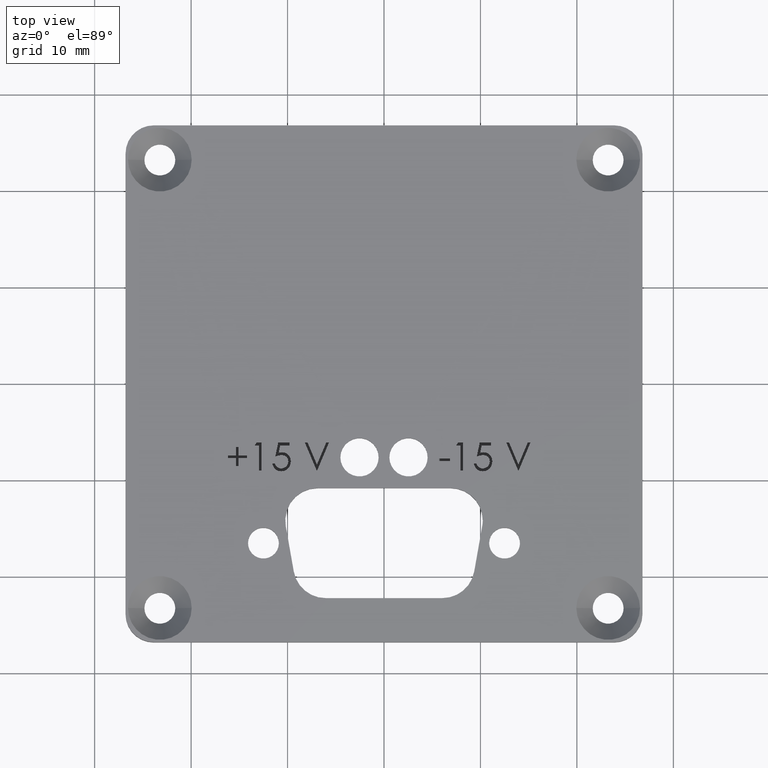
[diagram: clean part render]
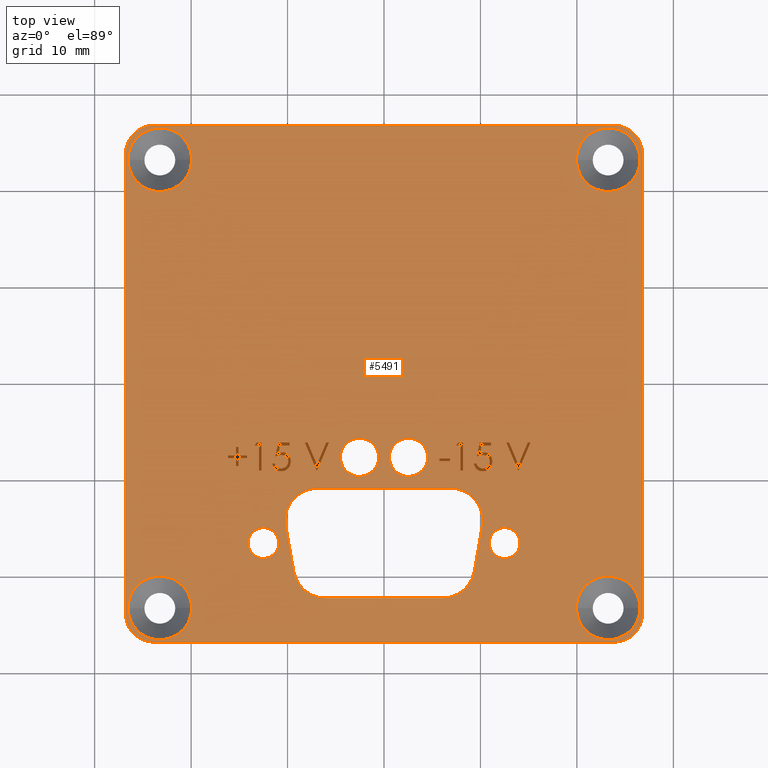
[diagram: same view with one face highlighted and labeled with its STEP entity id]
A machine part, top view. The second image highlights one B-rep face of the part: STEP entity #5491.
In plain terms, the highlighted planar face has unit normal (0, 0, -1).
Its self-contained STEP definition (entity closure, byte-faithful):
#26 = CARTESIAN_POINT ( 'NONE',  ( -0.4342483762146281400, -0.3422423992671264600, 0.04921259842519685300 ) ) ;
#28 = CARTESIAN_POINT ( 'NONE',  ( -0.9399999999999999500, 0.9399999999999999500, 0.04921259842519685300 ) ) ;
#38 = CARTESIAN_POINT ( 'NONE',  ( -0.4016004633481321500, -0.3398437705870133700, 0.04921259842519685300 ) ) ;
#44 = CARTESIAN_POINT ( 'NONE',  ( -0.4128722876191233700, -0.2801622764875556500, 0.04921259842519686700 ) ) ;
#56 = VERTEX_POINT ( 'NONE', #1797 ) ;
#61 = DIRECTION ( 'NONE',  ( -1.000000000000000000, 0.0000000000000000000, 0.0000000000000000000 ) ) ;
#63 = EDGE_CURVE ( 'NONE', #4593, #5942, #4323, .T. ) ;
#64 = CARTESIAN_POINT ( 'NONE',  ( -0.3683741319665453400, -0.7658215594520347800, 0.04921259842519685300 ) ) ;
#66 = VECTOR ( 'NONE', #2184, 39.37007874015748100 ) ;
#70 = CARTESIAN_POINT ( 'NONE',  ( 0.5476773504273504400, -0.3549999999999999800, 0.04921259842519685300 ) ) ;
#73 = CARTESIAN_POINT ( 'NONE',  ( -0.3811977613769290100, -0.3097483412736893900, 0.04921259842519685300 ) ) ;
#75 = DIRECTION ( 'NONE',  ( -1.000000000000000000, 0.0000000000000000000, 0.0000000000000000000 ) ) ;
#77 = CARTESIAN_POINT ( 'NONE',  ( 0.3722869156127242600, -0.3414500052070326100, 0.04921259842519685300 ) ) ;
#78 = DIRECTION ( 'NONE',  ( 0.2009441437213321000, 0.9796027006414900200, 0.0000000000000000000 ) ) ;
#96 = CARTESIAN_POINT ( 'NONE',  ( 0.4411996495457159400, -0.3258028111215923700, 0.04921259842519686000 ) ) ;
#111 = VECTOR ( 'NONE', #6210, 39.37007874015748100 ) ;
#112 = CARTESIAN_POINT ( 'NONE',  ( 0.9149999999999999200, 0.9149999999999999200, 0.04921259842519685300 ) ) ;
#117 = CARTESIAN_POINT ( 'NONE',  ( -0.4024833125234276200, -0.2957404681785858500, 0.04921259842519685300 ) ) ;
#139 = CARTESIAN_POINT ( 'NONE',  ( 0.3790781509987876700, -0.3317632625101061300, 0.04921259842519684600 ) ) ;
#155 = ORIENTED_EDGE ( 'NONE', *, *, #3222, .T. ) ;
#158 = EDGE_LOOP ( 'NONE', ( #3199, #1362 ) ) ;
#159 = CARTESIAN_POINT ( 'NONE',  ( -0.4549914916556105400, -0.3290828725037836500, 0.04921259842519686000 ) ) ;
#162 = LINE ( 'NONE', #5328, #4109 ) ;
#167 = ORIENTED_EDGE ( 'NONE', *, *, #4814, .T. ) ;
#169 = VECTOR ( 'NONE', #2106, 39.37007874015748100 ) ;
#177 = CARTESIAN_POINT ( 'NONE',  ( 0.4306168335663764800, -0.3092860542841234200, 0.04921259842519686000 ) ) ;
#181 = CARTESIAN_POINT ( 'NONE',  ( 0.4921259842519686800, -0.6503999999999999800, 0.04921259842519684600 ) ) ;
#187 = FACE_BOUND ( 'NONE', #5663, .T. ) ;
#192 = EDGE_CURVE ( 'NONE', #1609, #225, #2400, .T. ) ;
#195 = CARTESIAN_POINT ( 'NONE',  ( -0.2748386752136756600, -0.3550000000000000400, 0.04921259842519685300 ) ) ;
#196 = VECTOR ( 'NONE', #3627, 39.37007874015748100 ) ;
#197 = CARTESIAN_POINT ( 'NONE',  ( 0.4050151447056079000, -0.2918551831286140800, 0.04921259842519686000 ) ) ;
#200 = EDGE_CURVE ( 'NONE', #1895, #2270, #1645, .T. ) ;
#205 = VECTOR ( 'NONE', #4432, 39.37007874015748100 ) ;
#217 = DIRECTION ( 'NONE',  ( -1.000000000000000000, 0.0000000000000000000, 0.0000000000000000000 ) ) ;
#223 = EDGE_CURVE ( 'NONE', #1995, #3762, #1492, .T. ) ;
#225 = VERTEX_POINT ( 'NONE', #989 ) ;
#228 = CARTESIAN_POINT ( 'NONE',  ( -0.9150000000000002600, 0.9149999999999999200, 0.04921259842519685300 ) ) ;
#237 = DIRECTION ( 'NONE',  ( -1.000000000000000000, 0.0000000000000000000, 0.0000000000000000000 ) ) ;
#239 = ORIENTED_EDGE ( 'NONE', *, *, #3208, .T. ) ;
#240 = EDGE_CURVE ( 'NONE', #3902, #5310, #4881, .T. ) ;
#247 = CARTESIAN_POINT ( 'NONE',  ( -0.2248920940170944500, -0.2404166666666667000, 0.04921259842519685300 ) ) ;
#257 = ORIENTED_EDGE ( 'NONE', *, *, #3461, .T. ) ;
#268 = CARTESIAN_POINT ( 'NONE',  ( -0.2359097222222226700, -0.2404166666666667000, 0.04921259842519685300 ) ) ;
#269 = CARTESIAN_POINT ( 'NONE',  ( -0.4452446581196585200, -0.3256196581196581000, 0.04921259842519685300 ) ) ;
#271 = CARTESIAN_POINT ( 'NONE',  ( -0.4266008763226200000, -0.2813228338465145200, 0.04921259842519685300 ) ) ;
#276 = CARTESIAN_POINT ( 'NONE',  ( 0.7849999999999999200, 0.9149999999999999200, 0.04921259842519685300 ) ) ;
#279 = EDGE_CURVE ( 'NONE', #458, #5306, #1384, .T. ) ;
#281 = VECTOR ( 'NONE', #4546, 39.37007874015748100 ) ;
#284 = EDGE_LOOP ( 'NONE', ( #1784, #1870, #4349, #3992 ) ) ;
#302 = LINE ( 'NONE', #3047, #4091 ) ;
#303 = DIRECTION ( 'NONE',  ( 1.000000000000000000, 0.0000000000000000000, 0.0000000000000000000 ) ) ;
#318 = CARTESIAN_POINT ( 'NONE',  ( -0.5598279914529917800, -0.3035844017094017100, 0.04921259842519685300 ) ) ;
#322 = DIRECTION ( 'NONE',  ( 1.000000000000000000, 0.0000000000000000000, 0.0000000000000000000 ) ) ;
#323 = DIRECTION ( 'NONE',  ( -1.000000000000000000, 0.0000000000000000000, 0.0000000000000000000 ) ) ;
#324 = VECTOR ( 'NONE', #328, 39.37007874015748100 ) ;
#326 = CARTESIAN_POINT ( 'NONE',  ( 1.054999999999999700, 0.9399999999999999500, 0.04921259842519685300 ) ) ;
#328 = DIRECTION ( 'NONE',  ( 0.0000000000000000000, -1.000000000000000000, 0.0000000000000000000 ) ) ;
#334 = EDGE_LOOP ( 'NONE', ( #978, #5681 ) ) ;
#335 = DIRECTION ( 'NONE',  ( -1.000000000000000000, 0.0000000000000000000, 0.0000000000000000000 ) ) ;
#352 = EDGE_CURVE ( 'NONE', #3800, #1904, #4072, .T. ) ;
#358 = CARTESIAN_POINT ( 'NONE',  ( 0.4317603782716523700, -0.2905769292470773400, 0.04921259842519683200 ) ) ;
#360 = LINE ( 'NONE', #752, #196 ) ;
#361 = CARTESIAN_POINT ( 'NONE',  ( -0.6038985042735045500, -0.3373717948717948100, 0.04921259842519685300 ) ) ;
#365 = ORIENTED_EDGE ( 'NONE', *, *, #352, .F. ) ;
#368 = DIRECTION ( 'NONE',  ( 0.0000000000000000000, 0.0000000000000000000, 1.000000000000000000 ) ) ;
#375 = ORIENTED_EDGE ( 'NONE', *, *, #4632, .T. ) ;
#379 = CARTESIAN_POINT ( 'NONE',  ( 0.5102174145299145400, -0.2404166666666667000, 0.04921259842519685300 ) ) ;
#387 = DIRECTION ( 'NONE',  ( 1.000000000000000000, 0.0000000000000000000, 0.0000000000000000000 ) ) ;
#389 = CARTESIAN_POINT ( 'NONE',  ( 0.4304812416838550400, -0.3258753330237463300, 0.04921259842519684600 ) ) ;
#393 = CARTESIAN_POINT ( 'NONE',  ( -0.3233162393162397600, -0.2404166666666667000, 0.04921259842519685300 ) ) ;
#406 = VECTOR ( 'NONE', #2696, 39.37007874015748900 ) ;
#412 = CARTESIAN_POINT ( 'NONE',  ( 0.3858191051436260500, -0.2951315113495159300, 0.04921259842519685300 ) ) ;
#419 = CARTESIAN_POINT ( 'NONE',  ( -0.3937849892351600300, -0.3485028111755856800, 0.04921259842519686000 ) ) ;
#422 = EDGE_CURVE ( 'NONE', #2353, #1287, #5808, .T. ) ;
#424 = CARTESIAN_POINT ( 'NONE',  ( 0.4316249999999999800, -0.3171269030448717900, 0.04921259842519685300 ) ) ;
#429 = VERTEX_POINT ( 'NONE', #1374 ) ;
#438 = LINE ( 'NONE', #3277, #2729 ) ;
#439 = CARTESIAN_POINT ( 'NONE',  ( 0.2710000000000000700, -0.4259000000000001100, 0.04921259842519685300 ) ) ;
#442 = VERTEX_POINT ( 'NONE', #247 ) ;
#443 = AXIS2_PLACEMENT_3D ( 'NONE', #2064, #5512, #2534 ) ;
#447 = B_SPLINE_CURVE_WITH_KNOTS ( 'NONE', 3,
 ( #5129, #3656, #1677, #1184, #4141, #3639, #694, #2628, #3159, #5108, #5613, #2157, #4119, #4616, #3622, #674, #159, #3131, #2607 ),
 .UNSPECIFIED., .F., .F.,
 ( 4, 1, 1, 1, 1, 1, 1, 1, 1, 1, 1, 1, 1, 1, 1, 1, 4 ),
 ( 0.0000000000000000000, 0.06542114375889322700, 0.1287083718818836400, 0.1902361418635386500, 0.2507244020335389100, 0.3106371794134440400, 0.3707664082897271800, 0.4316147444123530400, 0.4935229735663545500, 0.5558834553775339200, 0.6173423673185098900, 0.6786680390972753600, 0.7407113595451471100, 0.8029853625127446600, 0.8668025802655177100, 0.9323471713458877400, 1.000000000000000000 ),
 .UNSPECIFIED. ) ;
#450 = VERTEX_POINT ( 'NONE', #269 ) ;
#452 = LINE ( 'NONE', #625, #3685 ) ;
#454 = CARTESIAN_POINT ( 'NONE',  ( 1.054999999999999700, 0.9399999999999999500, 0.04921259842519685300 ) ) ;
#458 = VERTEX_POINT ( 'NONE', #1070 ) ;
#463 = ORIENTED_EDGE ( 'NONE', *, *, #1152, .T. ) ;
#468 = LINE ( 'NONE', #361, #2913 ) ;
#467 = CARTESIAN_POINT ( 'NONE',  ( 0.4267772279669411800, -0.3501052846772678700, 0.04921259842519686000 ) ) ;
#470 = CARTESIAN_POINT ( 'NONE',  ( 0.3993840733380517000, -0.2806024068384061500, 0.04921259842519684600 ) ) ;
#478 = CARTESIAN_POINT ( 'NONE',  ( -0.3233162393162397600, -0.2404166666666667000, 0.04921259842519685300 ) ) ;
#479 = CARTESIAN_POINT ( 'NONE',  ( -0.4921259842519684100, -0.6503999999999999800, 0.04921259842519684600 ) ) ;
#488 = CARTESIAN_POINT ( 'NONE',  ( 0.4019462640224359400, -0.3579380341880341600, 0.04921259842519685300 ) ) ;
#496 = CARTESIAN_POINT ( 'NONE',  ( -0.5936153846153848800, -0.3373717948717948100, 0.04921259842519685300 ) ) ;
#500 = CARTESIAN_POINT ( 'NONE',  ( -0.4333341157116857300, -0.2941259771028458300, 0.04921259842519685300 ) ) ;
#502 = CARTESIAN_POINT ( 'NONE',  ( 0.9399999999999999500, -0.9399999999999999500, 0.04921259842519685300 ) ) ;
#508 = VECTOR ( 'NONE', #3115, 39.37007874015748100 ) ;
#544 = DIRECTION ( 'NONE',  ( -1.000000000000000000, 0.0000000000000000000, 0.0000000000000000000 ) ) ;
#549 = CARTESIAN_POINT ( 'NONE',  ( -0.4288398363418813900, -0.3447793240485869700, 0.04921259842519686000 ) ) ;
#550 = VERTEX_POINT ( 'NONE', #1649 ) ;
#559 = CARTESIAN_POINT ( 'NONE',  ( -0.4056773761836196500, -0.2815081973352344700, 0.04921259842519686000 ) ) ;
#574 = CARTESIAN_POINT ( 'NONE',  ( -0.3806366600433290200, -0.3162223876754637300, 0.04921259842519686000 ) ) ;
#577 = CARTESIAN_POINT ( 'NONE',  ( -0.3966299482573038500, -0.3006276606318006900, 0.04921259842519686700 ) ) ;
#580 = VERTEX_POINT ( 'NONE', #2581 ) ;
#581 = CARTESIAN_POINT ( 'NONE',  ( -0.4437756410256414900, -0.2977083333333333500, 0.04921259842519685300 ) ) ;
#583 = EDGE_CURVE ( 'NONE', #5689, #5526, #302, .T. ) ;
#587 = CARTESIAN_POINT ( 'NONE',  ( 0.3904925213675218300, -0.2404166666666667500, 0.04921259842519685300 ) ) ;
#590 = CARTESIAN_POINT ( 'NONE',  ( -0.5098814102564104300, -0.2521688034188034300, 0.04921259842519685300 ) ) ;
#591 = CARTESIAN_POINT ( 'NONE',  ( -0.5936153846153848800, -0.3035844017094017100, 0.04921259842519685300 ) ) ;
#595 = VERTEX_POINT ( 'NONE', #4683 ) ;
#602 = VECTOR ( 'NONE', #3406, 39.37007874015748100 ) ;
#605 = CARTESIAN_POINT ( 'NONE',  ( -0.2741041666666670900, -0.3307153111645298500, 0.04921259842519685300 ) ) ;
#607 = EDGE_LOOP ( 'NONE', ( #4696, #2932, #1299, #1780, #239, #4225, #5304, #4987, #4516, #4341, #1293, #2443 ) ) ;
#612 = CARTESIAN_POINT ( 'NONE',  ( 0.3772713675213675300, -0.3256196581196581000, 0.04921259842519685300 ) ) ;
#618 = DIRECTION ( 'NONE',  ( 0.0000000000000000000, -1.000000000000000000, 0.0000000000000000000 ) ) ;
#621 = EDGE_CURVE ( 'NONE', #2623, #5951, #3810, .T. ) ;
#624 = VECTOR ( 'NONE', #4321, 39.37007874015748100 ) ;
#625 = CARTESIAN_POINT ( 'NONE',  ( 0.3904925213675213800, -0.2404166666666667000, 0.04921259842519685300 ) ) ;
#633 = CARTESIAN_POINT ( 'NONE',  ( 0.4015382404701236000, -0.3461583949847700200, 0.04921259842519684600 ) ) ;
#668 = CARTESIAN_POINT ( 'NONE',  ( -0.3850149572649577100, -0.2521688034188034300, 0.04921259842519685300 ) ) ;
#674 = CARTESIAN_POINT ( 'NONE',  ( -0.4541508312259249200, -0.3324188845375139500, 0.04921259842519684600 ) ) ;
#691 = CARTESIAN_POINT ( 'NONE',  ( 0.4287277345649295200, -0.3046916660712664100, 0.04921259842519686000 ) ) ;
#694 = CARTESIAN_POINT ( 'NONE',  ( -0.4363240385214818800, -0.3544790597558651300, 0.04921259842519686700 ) ) ;
#706 = CARTESIAN_POINT ( 'NONE',  ( -0.3920347839571708400, -0.3258753330237463300, 0.04921259842519684600 ) ) ;
#710 = AXIS2_PLACEMENT_3D ( 'NONE', #112, #3172, #5036 ) ;
#712 = CARTESIAN_POINT ( 'NONE',  ( 0.3861919871195442800, -0.3544790597558651300, 0.04921259842519686700 ) ) ;
#735 = VERTEX_POINT ( 'NONE', #6428 ) ;
#739 = EDGE_CURVE ( 'NONE', #4587, #3710, #1380, .T. ) ;
#747 = VERTEX_POINT ( 'NONE', #4161 ) ;
#749 = LINE ( 'NONE', #1549, #3054 ) ;
#750 = EDGE_CURVE ( 'NONE', #1287, #5397, #5322, .T. ) ;
#752 = CARTESIAN_POINT ( 'NONE',  ( -0.5275096153846156000, -0.2521688034188034300, 0.04921259842519685300 ) ) ;
#760 = ORIENTED_EDGE ( 'NONE', *, *, #63, .T. ) ;
#764 = ORIENTED_EDGE ( 'NONE', *, *, #6255, .T. ) ;
#777 = VERTEX_POINT ( 'NONE', #4526 ) ;
#783 = VERTEX_POINT ( 'NONE', #1076 ) ;
#793 = VECTOR ( 'NONE', #5679, 39.37007874015748100 ) ;
#802 = DIRECTION ( 'NONE',  ( 0.4966865118376858600, 0.8679300138597076900, 0.0000000000000000000 ) ) ;
#806 = DIRECTION ( 'NONE',  ( 1.000000000000000000, 0.0000000000000000000, 0.0000000000000000000 ) ) ;
#847 = B_SPLINE_CURVE_WITH_KNOTS ( 'NONE', 3,
 ( #5973, #2488, #44, #3502, #559, #3998, #1050, #4503, #1542, #4986, #2042, #5489, #2515, #6001, #3024, #73, #3529, #574, #4021 ),
 .UNSPECIFIED., .F., .F.,
 ( 4, 1, 1, 1, 1, 1, 1, 1, 1, 1, 1, 1, 1, 1, 1, 1, 4 ),
 ( 0.0000000000000000000, 0.06580764581069495400, 0.1293942736680558900, 0.1908940606321903600, 0.2512810689298358200, 0.3108149644652737900, 0.3703709874482450900, 0.4307682625897271700, 0.4928812506175027100, 0.5551039481552504400, 0.6160670509938428500, 0.6772560331746542200, 0.7382598051991173800, 0.8007621343762962900, 0.8647775815744852500, 0.9310452949994044700, 1.000000000000000000 ),
 .UNSPECIFIED. ) ;
#850 = CARTESIAN_POINT ( 'NONE',  ( 0.4413182642640971500, -0.3097483412736893900, 0.04921259842519685300 ) ) ;
#857 = CARTESIAN_POINT ( 'NONE',  ( 0.4075932664144185600, -0.3576379677952316600, 0.04921259842519684600 ) ) ;
#866 = CARTESIAN_POINT ( 'NONE',  ( 0.4233490426983288500, -0.2841282354430955100, 0.04921259842519686000 ) ) ;
#885 = CARTESIAN_POINT ( 'NONE',  ( 0.5484118589743589600, -0.3307153111645298500, 0.04921259842519685300 ) ) ;
#889 = CARTESIAN_POINT ( 'NONE',  ( -0.3808928853908278800, -0.3231064088480631300, 0.04921259842519683200 ) ) ;
#890 = FACE_BOUND ( 'NONE', #6092, .T. ) ;
#897 = LINE ( 'NONE', #4513, #2201 ) ;
#901 = EDGE_CURVE ( 'NONE', #1325, #4597, #6201, .T. ) ;
#908 = CARTESIAN_POINT ( 'NONE',  ( 0.3823150726061493300, -0.2963337196407347900, 0.04921259842519686000 ) ) ;
#917 = CARTESIAN_POINT ( 'NONE',  ( -0.3977909104994432100, -0.3515942568002858900, 0.04921259842519685300 ) ) ;
#930 = CARTESIAN_POINT ( 'NONE',  ( 0.4031009664638312600, -0.2918512724058762700, 0.04921259842519684600 ) ) ;
#931 = VECTOR ( 'NONE', #2286, 39.37007874015748100 ) ;
#936 = CARTESIAN_POINT ( 'NONE',  ( 0.4179016467883832100, -0.3551121186315359100, 0.04921259842519686700 ) ) ;
#942 = EDGE_CURVE ( 'NONE', #783, #4587, #1451, .T. ) ;
#954 = CARTESIAN_POINT ( 'NONE',  ( 0.4048142617686960600, -0.2801088226114231100, 0.04921259842519686000 ) ) ;
#956 = CARTESIAN_POINT ( 'NONE',  ( 0.4250820605386875200, -0.3357866587677006400, 0.04921259842519684600 ) ) ;
#961 = DIRECTION ( 'NONE',  ( -1.000000000000000000, 0.0000000000000000000, 0.0000000000000000000 ) ) ;
#962 = VERTEX_POINT ( 'NONE', #3160 ) ;
#965 = CIRCLE ( 'NONE', #5998, 0.1319999999999999800 ) ;
#973 = LINE ( 'NONE', #4175, #3599 ) ;
#977 = CARTESIAN_POINT ( 'NONE',  ( 0.4295431872581143000, -0.3285493334075645400, 0.04921259842519686000 ) ) ;
#978 = ORIENTED_EDGE ( 'NONE', *, *, #3378, .F. ) ;
#984 = CARTESIAN_POINT ( 'NONE',  ( -0.4555277777777782000, -0.3256196581196581000, 0.04921259842519685300 ) ) ;
#988 = CARTESIAN_POINT ( 'NONE',  ( -0.4366969204973999400, -0.2951315113495158700, 0.04921259842519685300 ) ) ;
#989 = CARTESIAN_POINT ( 'NONE',  ( 0.4991997863247862900, -0.2404166666666667000, 0.04921259842519685300 ) ) ;
#1003 = B_SPLINE_CURVE_WITH_KNOTS ( 'NONE', 3,
 ( #5349, #930, #5493, #5861, #4847, #3851, #1887, #412, #908, #6351, #2858 ),
 .UNSPECIFIED., .F., .F.,
 ( 4, 1, 1, 1, 1, 1, 1, 1, 4 ),
 ( 0.0000000000000000000, 0.1022030370352197300, 0.2110233423738753800, 0.3250996615652077500, 0.4465020971348910300, 0.5737877176488572800, 0.7089007097660667800, 0.8503578712934010100, 1.000000000000000000 ),
 .UNSPECIFIED. ) ;
#1005 = CARTESIAN_POINT ( 'NONE',  ( 0.5476773504273504400, -0.3550000000000000400, 0.04921259842519685300 ) ) ;
#1006 = CARTESIAN_POINT ( 'NONE',  ( -0.2383795085689338300, -0.7428999999999998900, 0.04921259842519685300 ) ) ;
#1007 = CARTESIAN_POINT ( 'NONE',  ( -0.4194150591771947900, -0.2918512724058762700, 0.04921259842519684600 ) ) ;
#1017 = DIRECTION ( 'NONE',  ( 0.0000000000000000000, 0.0000000000000000000, 1.000000000000000000 ) ) ;
#1034 = CARTESIAN_POINT ( 'NONE',  ( -0.4229773746713830200, -0.3461036647204302500, 0.04921259842519685300 ) ) ;
#1036 = VERTEX_POINT ( 'NONE', #5823 ) ;
#1039 = ORIENTED_EDGE ( 'NONE', *, *, #5177, .T. ) ;
#1040 = CARTESIAN_POINT ( 'NONE',  ( 0.2685641025641025700, -0.3050534188034188000, 0.04921259842519685300 ) ) ;
#1043 = VECTOR ( 'NONE', #1776, 39.37007874015748900 ) ;
#1044 = CARTESIAN_POINT ( 'NONE',  ( -0.3908910256410260700, -0.3171269030448717900, 0.04921259842519685300 ) ) ;
#1049 = FACE_BOUND ( 'NONE', #5228, .T. ) ;
#1050 = CARTESIAN_POINT ( 'NONE',  ( -0.3991669829426972000, -0.2841282354430955100, 0.04921259842519686000 ) ) ;
#1055 = LINE ( 'NONE', #5986, #3523 ) ;
#1059 = CIRCLE ( 'NONE', #1637, 0.1299999999999999800 ) ;
#1070 = CARTESIAN_POINT ( 'NONE',  ( -0.2710000000000000700, -0.4258999999999999500, 0.04921259842519685300 ) ) ;
#1076 = CARTESIAN_POINT ( 'NONE',  ( -0.6376858974358977600, -0.2933012820512821400, 0.04921259842519685300 ) ) ;
#1080 = CARTESIAN_POINT ( 'NONE',  ( 0.4058483406784188000, -0.2800801282051281800, 0.04921259842519685300 ) ) ;
#1085 = ORIENTED_EDGE ( 'NONE', *, *, #1340, .T. ) ;
#1097 = CARTESIAN_POINT ( 'NONE',  ( 0.4419081196581196600, -0.3175630174946581000, 0.04921259842519685300 ) ) ;
#1106 = CARTESIAN_POINT ( 'NONE',  ( -0.4063172583576601900, -0.3429923599824590800, 0.04921259842519686000 ) ) ;
#1108 = DIRECTION ( 'NONE',  ( 1.000000000000000000, 0.0000000000000000000, 0.0000000000000000000 ) ) ;
#1118 = EDGE_CURVE ( 'NONE', #4748, #2959, #1923, .T. ) ;
#1121 = EDGE_CURVE ( 'NONE', #735, #595, #5719, .T. ) ;
#1123 = CARTESIAN_POINT ( 'NONE',  ( 0.3965822586744586200, -0.3455569092999810100, 0.04921259842519683200 ) ) ;
#1128 = VECTOR ( 'NONE', #2846, 39.37007874015748900 ) ;
#1141 = LINE ( 'NONE', #3612, #3608 ) ;
#1149 = EDGE_CURVE ( 'NONE', #6244, #3978, #1003, .T. ) ;
#1152 = EDGE_CURVE ( 'NONE', #4060, #3059, #3082, .T. ) ;
#1154 = ORIENTED_EDGE ( 'NONE', *, *, #3178, .T. ) ;
#1170 = CARTESIAN_POINT ( 'NONE',  ( 0.4247251151415827300, -0.3515942568002857800, 0.04921259842519684600 ) ) ;
#1174 = CARTESIAN_POINT ( 'NONE',  ( -0.5207842715010685400, -0.2404166666666667000, 0.04921259842519685300 ) ) ;
#1179 = AXIS2_PLACEMENT_3D ( 'NONE', #6236, #2738, #5728 ) ;
#1180 = CARTESIAN_POINT ( 'NONE',  ( -0.3909726278843903000, -0.3201449826988435100, 0.04921259842519684600 ) ) ;
#1182 = CARTESIAN_POINT ( 'NONE',  ( 0.4258860773837225300, -0.3006276606318006900, 0.04921259842519686700 ) ) ;
#1184 = CARTESIAN_POINT ( 'NONE',  ( -0.4272485156758945000, -0.3574054356196813600, 0.04921259842519685300 ) ) ;
#1193 = CARTESIAN_POINT ( 'NONE',  ( -0.5936153846153848800, -0.2595138888888888800, 0.04921259842519685300 ) ) ;
#1200 = FACE_BOUND ( 'NONE', #334, .T. ) ;
#1206 = DIRECTION ( 'NONE',  ( 0.0000000000000000000, 0.0000000000000000000, 1.000000000000000000 ) ) ;
#1219 = VECTOR ( 'NONE', #544, 39.37007874015748100 ) ;
#1221 = CARTESIAN_POINT ( 'NONE',  ( 0.4082970426522599700, -0.3456988885297482800, 0.04921259842519686700 ) ) ;
#1231 = DIRECTION ( 'NONE',  ( 0.0000000000000000000, 0.0000000000000000000, -1.000000000000000000 ) ) ;
#1233 = EDGE_CURVE ( 'NONE', #962, #777, #1764, .T. ) ;
#1237 = EDGE_CURVE ( 'NONE', #5579, #550, #468, .T. ) ;
#1250 = EDGE_CURVE ( 'NONE', #1036, #2321, #4399, .T. ) ;
#1258 = AXIS2_PLACEMENT_3D ( 'NONE', #502, #6437, #5117 ) ;
#1266 = CARTESIAN_POINT ( 'NONE',  ( -0.4289511407695132400, -0.2819716876254120300, 0.04921259842519686000 ) ) ;
#1282 = CARTESIAN_POINT ( 'NONE',  ( -0.3984008136575277200, -0.2988240353648226600, 0.04921259842519685300 ) ) ;
#1287 = VERTEX_POINT ( 'NONE', #318 ) ;
#1291 = CARTESIAN_POINT ( 'NONE',  ( 0.2685641025641025700, -0.3168055555555555600, 0.04921259842519685300 ) ) ;
#1293 = ORIENTED_EDGE ( 'NONE', *, *, #2138, .T. ) ;
#1299 = ORIENTED_EDGE ( 'NONE', *, *, #1836, .T. ) ;
#1303 = DIRECTION ( 'NONE',  ( 1.000000000000000000, 0.0000000000000000000, 0.0000000000000000000 ) ) ;
#1304 = ORIENTED_EDGE ( 'NONE', *, *, #3990, .T. ) ;
#1308 = DIRECTION ( 'NONE',  ( -1.000000000000000000, 0.0000000000000000000, 0.0000000000000000000 ) ) ;
#1317 = VECTOR ( 'NONE', #2834, 39.37007874015748100 ) ;
#1320 = CARTESIAN_POINT ( 'NONE',  ( 0.4418229779503299300, -0.3135933690122227900, 0.04921259842519686000 ) ) ;
#1324 = AXIS2_PLACEMENT_3D ( 'NONE', #1591, #2881, #4113 ) ;
#1325 = VERTEX_POINT ( 'NONE', #4715 ) ;
#1339 = EDGE_CURVE ( 'NONE', #4241, #580, #1854, .T. ) ;
#1340 = EDGE_CURVE ( 'NONE', #5526, #6291, #4767, .T. ) ;
#1344 = CARTESIAN_POINT ( 'NONE',  ( 0.4168386494574065600, -0.2815081973352344700, 0.04921259842519685300 ) ) ;
#1345 = DIRECTION ( 'NONE',  ( 0.0000000000000000000, -1.000000000000000000, 0.0000000000000000000 ) ) ;
#1352 = CARTESIAN_POINT ( 'NONE',  ( -0.5098814102564104300, -0.2521688034188034300, 0.04921259842519685300 ) ) ;
#1355 = CARTESIAN_POINT ( 'NONE',  ( 0.4047980659076887400, -0.3579121964028881800, 0.04921259842519685300 ) ) ;
#1362 = ORIENTED_EDGE ( 'NONE', *, *, #2180, .F. ) ;
#1364 = CARTESIAN_POINT ( 'NONE',  ( 0.3683741319665452800, -0.7658215594520347800, 0.04921259842519685300 ) ) ;
#1367 = VECTOR ( 'NONE', #3008, 39.37007874015748100 ) ;
#1374 = CARTESIAN_POINT ( 'NONE',  ( -0.2733696581196585800, -0.3549999999999999800, 0.04921259842519685300 ) ) ;
#1380 = LINE ( 'NONE', #5906, #66 ) ;
#1384 = CIRCLE ( 'NONE', #5122, 0.1319999999999999800 ) ;
#1386 = CARTESIAN_POINT ( 'NONE',  ( -0.3818849623010974700, -0.3284412525210737600, 0.04921259842519685300 ) ) ;
#1388 = CARTESIAN_POINT ( 'NONE',  ( 0.4029033482339429700, -0.3579293628506767800, 0.04921259842519685300 ) ) ;
#1398 = CARTESIAN_POINT ( 'NONE',  ( -0.4022366693629245700, -0.3541193837782956600, 0.04921259842519685300 ) ) ;
#1399 = VERTEX_POINT ( 'NONE', #587 ) ;
#1408 = DIRECTION ( 'NONE',  ( 0.0000000000000000000, 0.0000000000000000000, 1.000000000000000000 ) ) ;
#1420 = DIRECTION ( 'NONE',  ( -1.000000000000000000, 0.0000000000000000000, 0.0000000000000000000 ) ) ;
#1451 = LINE ( 'NONE', #5838, #4092 ) ;
#1453 = CARTESIAN_POINT ( 'NONE',  ( -0.3850149572649577100, -0.2521688034188034300, 0.04921259842519685300 ) ) ;
#1455 = EDGE_CURVE ( 'NONE', #3239, #5695, #5235, .T. ) ;
#1456 = CARTESIAN_POINT ( 'NONE',  ( 0.4268419335520005100, -0.3335121012448614100, 0.04921259842519686700 ) ) ;
#1467 = ORIENTED_EDGE ( 'NONE', *, *, #1679, .T. ) ;
#1473 = LINE ( 'NONE', #1911, #5265 ) ;
#1479 = CIRCLE ( 'NONE', #3411, 0.06299999999999998700 ) ;
#1481 = DIRECTION ( 'NONE',  ( -1.000000000000000000, 0.0000000000000000000, 0.0000000000000000000 ) ) ;
#1486 = DIRECTION ( 'NONE',  ( 1.000000000000000000, 0.0000000000000000000, 0.0000000000000000000 ) ) ;
#1488 = LINE ( 'NONE', #6043, #6303 ) ;
#1492 = CIRCLE ( 'NONE', #4137, 0.06299999999999998700 ) ;
#1494 = ORIENTED_EDGE ( 'NONE', *, *, #4308, .T. ) ;
#1504 = EDGE_CURVE ( 'NONE', #2640, #4363, #2440, .T. ) ;
#1525 = CARTESIAN_POINT ( 'NONE',  ( -0.4199729734241456900, -0.3461858974358974500, 0.04921259842519685300 ) ) ;
#1526 = ORIENTED_EDGE ( 'NONE', *, *, #1794, .T. ) ;
#1534 = VERTEX_POINT ( 'NONE', #5958 ) ;
#1536 = DIRECTION ( 'NONE',  ( 0.0000000000000000000, -1.000000000000000000, 0.0000000000000000000 ) ) ;
#1541 = ORIENTED_EDGE ( 'NONE', *, *, #5346, .T. ) ;
#1542 = CARTESIAN_POINT ( 'NONE',  ( -0.3933728156238257600, -0.2881102770698280000, 0.04921259842519686700 ) ) ;
#1549 = CARTESIAN_POINT ( 'NONE',  ( -0.6038985042735045500, -0.3035844017094017100, 0.04921259842519685300 ) ) ;
#1556 = DIRECTION ( 'NONE',  ( -0.3896399908366981500, 0.9209672510685588100, 0.0000000000000000000 ) ) ;
#1569 = CARTESIAN_POINT ( 'NONE',  ( 0.4338580798276672200, -0.3428331940440277900, 0.04921259842519685300 ) ) ;
#1580 = VERTEX_POINT ( 'NONE', #3117 ) ;
#1581 = LINE ( 'NONE', #2498, #2724 ) ;
#1586 = CARTESIAN_POINT ( 'NONE',  ( -0.4185269097222226700, -0.2918322649572649400, 0.04921259842519686000 ) ) ;
#1591 = CARTESIAN_POINT ( 'NONE',  ( 0.9399999999999999500, 0.9399999999999999500, 0.04921259842519685300 ) ) ;
#1601 = CARTESIAN_POINT ( 'NONE',  ( 0.3017317541399572900, -0.2404166666666667000, 0.04921259842519685300 ) ) ;
#1609 = VERTEX_POINT ( 'NONE', #1005 ) ;
#1634 = CARTESIAN_POINT ( 'NONE',  ( 0.2710000000000000700, -0.5578999999999999500, 0.04921259842519685300 ) ) ;
#1636 = CARTESIAN_POINT ( 'NONE',  ( -0.6038985042735045500, -0.2595138888888888800, 0.04921259842519685300 ) ) ;
#1637 = AXIS2_PLACEMENT_3D ( 'NONE', #6267, #3282, #322 ) ;
#1643 = CIRCLE ( 'NONE', #2728, 0.1149999999999998700 ) ;
#1645 = LINE ( 'NONE', #1040, #5490 ) ;
#1649 = CARTESIAN_POINT ( 'NONE',  ( -0.6038985042735045500, -0.3035844017094017100, 0.04921259842519685300 ) ) ;
#1654 = CIRCLE ( 'NONE', #1324, 0.1149999999999998700 ) ;
#1656 = CARTESIAN_POINT ( 'NONE',  ( -0.3908910256410260700, -0.3171269030448717900, 0.04921259842519685300 ) ) ;
#1659 = CARTESIAN_POINT ( 'NONE',  ( -1.054999999999999700, -0.9399999999999999500, 0.04921259842519685300 ) ) ;
#1666 = DIRECTION ( 'NONE',  ( 1.000000000000000000, 0.0000000000000000000, 0.0000000000000000000 ) ) ;
#1672 = CARTESIAN_POINT ( 'NONE',  ( 0.4221752165954806800, -0.2971594710088580300, 0.04921259842519684600 ) ) ;
#1674 = VERTEX_POINT ( 'NONE', #5537 ) ;
#1676 = ORIENTED_EDGE ( 'NONE', *, *, #3863, .T. ) ;
#1677 = CARTESIAN_POINT ( 'NONE',  ( -0.4239576637777183700, -0.3578709217440708100, 0.04921259842519684600 ) ) ;
#1679 = EDGE_CURVE ( 'NONE', #1399, #3156, #452, .T. ) ;
#1681 = EDGE_CURVE ( 'NONE', #5281, #4485, #5545, .T. ) ;
#1682 = EDGE_CURVE ( 'NONE', #5794, #4024, #4228, .T. ) ;
#1684 = ORIENTED_EDGE ( 'NONE', *, *, #3663, .T. ) ;
#1706 = CARTESIAN_POINT ( 'NONE',  ( -0.4039216884926184500, -0.3415284735718200900, 0.04921259842519686700 ) ) ;
#1718 = AXIS2_PLACEMENT_3D ( 'NONE', #2610, #6104, #3135 ) ;
#1725 = CARTESIAN_POINT ( 'NONE',  ( -0.5936153846153848800, -0.2933012820512820300, 0.04921259842519685300 ) ) ;
#1738 = CIRCLE ( 'NONE', #2237, 0.1299999999999999800 ) ;
#1748 = ORIENTED_EDGE ( 'NONE', *, *, #4775, .F. ) ;
#1762 = DIRECTION ( 'NONE',  ( 0.0000000000000000000, 0.0000000000000000000, -1.000000000000000000 ) ) ;
#1763 = CARTESIAN_POINT ( 'NONE',  ( -0.4301642795138893000, -0.2823066072382478500, 0.04921259842519685300 ) ) ;
#1764 = LINE ( 'NONE', #4798, #5559 ) ;
#1767 = CARTESIAN_POINT ( 'NONE',  ( 0.4291259842519686800, -0.6503999999999999800, 0.04921259842519684600 ) ) ;
#1776 = DIRECTION ( 'NONE',  ( -0.2007054744631352700, -0.9796516281416203200, 0.0000000000000000000 ) ) ;
#1780 = ORIENTED_EDGE ( 'NONE', *, *, #3864, .T. ) ;
#1784 = ORIENTED_EDGE ( 'NONE', *, *, #1504, .T. ) ;
#1794 = EDGE_CURVE ( 'NONE', #3059, #5888, #3909, .T. ) ;
#1797 = CARTESIAN_POINT ( 'NONE',  ( 0.3229177350427350200, -0.2404166666666667000, 0.04921259842519685300 ) ) ;
#1799 = ORIENTED_EDGE ( 'NONE', *, *, #2369, .F. ) ;
#1813 = CARTESIAN_POINT ( 'NONE',  ( 0.4375010683760683900, -0.2404166666666667000, 0.04921259842519685300 ) ) ;
#1819 = CARTESIAN_POINT ( 'NONE',  ( 0.4379954430618412400, -0.2993051395126502000, 0.04921259842519685300 ) ) ;
#1827 = CIRCLE ( 'NONE', #4857, 0.06299999999999998700 ) ;
#1831 = EDGE_LOOP ( 'NONE', ( #2690, #2053, #5294, #6105, #1676, #257, #3675 ) ) ;
#1834 = CARTESIAN_POINT ( 'NONE',  ( 0.4225429494703610300, -0.3529092869994839800, 0.04921259842519686000 ) ) ;
#1836 = EDGE_CURVE ( 'NONE', #3710, #3025, #5072, .T. ) ;
#1841 = CARTESIAN_POINT ( 'NONE',  ( -0.3122986111111115100, -0.2404166666666667000, 0.04921259842519685300 ) ) ;
#1843 = CARTESIAN_POINT ( 'NONE',  ( 0.4071278678713777800, -0.2801078225284645600, 0.04921259842519684600 ) ) ;
#1850 = LINE ( 'NONE', #1193, #3012 ) ;
#1854 = B_SPLINE_CURVE_WITH_KNOTS ( 'NONE', 3,
 ( #1763, #1266, #271, #3724, #3246, #6213, #5709 ),
 .UNSPECIFIED., .F., .F.,
 ( 4, 1, 1, 1, 4 ),
 ( 0.0000000000000000000, 0.2750683690187465900, 0.5329014600899365500, 0.7739734595924457900, 0.9999999999999998900 ),
 .UNSPECIFIED. ) ;
#1866 = CARTESIAN_POINT ( 'NONE',  ( -0.3835163497729610600, -0.3335366391316835200, 0.04921259842519686700 ) ) ;
#1870 = ORIENTED_EDGE ( 'NONE', *, *, #4895, .T. ) ;
#1883 = EDGE_CURVE ( 'NONE', #3754, #5794, #360, .T. ) ;
#1887 = CARTESIAN_POINT ( 'NONE',  ( 0.3891819099293404300, -0.2941259771028457700, 0.04921259842519685300 ) ) ;
#1895 = VERTEX_POINT ( 'NONE', #4326 ) ;
#1896 = B_SPLINE_CURVE_WITH_KNOTS ( 'NONE', 3,
 ( #3618, #4870, #6144, #6056, #4242, #2085, #712, #6214, #4271, #4106, #3508, #5945, #77, #6397, #3207, #3081, #3414, #3029, #3259 ),
 .UNSPECIFIED., .F., .F.,
 ( 4, 1, 1, 1, 1, 1, 1, 1, 1, 1, 1, 1, 1, 1, 1, 1, 4 ),
 ( 0.0000000000000000000, 0.06542114375889322700, 0.1287083718818836400, 0.1902361418635386500, 0.2507244020335389100, 0.3106371794134440400, 0.3707664082897271800, 0.4316147444123530400, 0.4935229735663545500, 0.5558834553775339200, 0.6173423673185098900, 0.6786680390972753600, 0.7407113595451471100, 0.8029853625127446600, 0.8668025802655177100, 0.9323471713458877400, 1.000000000000000000 ),
 .UNSPECIFIED. ) ;
#1899 = CARTESIAN_POINT ( 'NONE',  ( -0.4070520803557158800, -0.3559996656819360300, 0.04921259842519684600 ) ) ;
#1904 = VERTEX_POINT ( 'NONE', #276 ) ;
#1908 = ORIENTED_EDGE ( 'NONE', *, *, #3475, .T. ) ;
#1911 = CARTESIAN_POINT ( 'NONE',  ( 0.5976239316239316800, -0.2404166666666667000, 0.04921259842519685300 ) ) ;
#1912 = DIRECTION ( 'NONE',  ( 0.0000000000000000000, 0.0000000000000000000, 1.000000000000000000 ) ) ;
#1913 = CARTESIAN_POINT ( 'NONE',  ( 0.4129311666200030700, -0.3567071204549347500, 0.04921259842519685300 ) ) ;
#1915 = ORIENTED_EDGE ( 'NONE', *, *, #5658, .F. ) ;
#1923 = CIRCLE ( 'NONE', #2191, 0.1319999999999999800 ) ;
#1939 = CARTESIAN_POINT ( 'NONE',  ( -0.1000000000000000200, -0.2999999999999999900, 0.04921259842519685300 ) ) ;
#1951 = CARTESIAN_POINT ( 'NONE',  ( 0.4209155622928939500, -0.3398437705870133700, 0.04921259842519686000 ) ) ;
#1960 = AXIS2_PLACEMENT_3D ( 'NONE', #1939, #4882, #4402 ) ;
#1965 = DIRECTION ( 'NONE',  ( -1.000000000000000000, 0.0000000000000000000, 0.0000000000000000000 ) ) ;
#1970 = ORIENTED_EDGE ( 'NONE', *, *, #2110, .T. ) ;
#1973 = CARTESIAN_POINT ( 'NONE',  ( -0.3927315214776751500, -0.3069251716243269200, 0.04921259842519684600 ) ) ;
#1991 = VERTEX_POINT ( 'NONE', #1352 ) ;
#1995 = VERTEX_POINT ( 'NONE', #1767 ) ;
#1998 = ORIENTED_EDGE ( 'NONE', *, *, #4982, .F. ) ;
#2010 = CARTESIAN_POINT ( 'NONE',  ( -0.4434378746422383300, -0.3317632625101061800, 0.04921259842519686000 ) ) ;
#2014 = VECTOR ( 'NONE', #5696, 39.37007874015748100 ) ;
#2017 = EDGE_CURVE ( 'NONE', #2934, #3579, #973, .T. ) ;
#2019 = EDGE_CURVE ( 'NONE', #2616, #5579, #2275, .T. ) ;
#2024 = CARTESIAN_POINT ( 'NONE',  ( -0.4995982905982908600, -0.2404166666666667000, 0.04921259842519685300 ) ) ;
#2040 = CARTESIAN_POINT ( 'NONE',  ( -0.3909547784757709800, -0.3144086576655853400, 0.04921259842519686000 ) ) ;
#2042 = CARTESIAN_POINT ( 'NONE',  ( -0.3883813396615769500, -0.2932916250336065600, 0.04921259842519683200 ) ) ;
#2049 = DIRECTION ( 'NONE',  ( -1.000000000000000000, 0.0000000000000000000, 0.0000000000000000000 ) ) ;
#2053 = ORIENTED_EDGE ( 'NONE', *, *, #3463, .T. ) ;
#2057 = CARTESIAN_POINT ( 'NONE',  ( -0.4185269097222226700, -0.2918322649572649400, 0.04921259842519686000 ) ) ;
#2064 = CARTESIAN_POINT ( 'NONE',  ( 0.9150000000000002600, -0.9150000000000002600, 0.04921259842519685300 ) ) ;
#2066 = CARTESIAN_POINT ( 'NONE',  ( -0.4047834886982685800, -0.2945467089697461100, 0.04921259842519683200 ) ) ;
#2067 = B_SPLINE_CURVE_WITH_KNOTS ( 'NONE', 3,
 ( #5817, #1843, #2331, #4796, #1344, #4319, #866, #3799, #3316, #358, #2312, #2810, #1819, #5277, #4779, #850, #1320, #4289, #6278 ),
 .UNSPECIFIED., .F., .F.,
 ( 4, 1, 1, 1, 1, 1, 1, 1, 1, 1, 1, 1, 1, 1, 1, 1, 4 ),
 ( 0.0000000000000000000, 0.06580764581069494000, 0.1293942736680558600, 0.1908940606321902800, 0.2512810689298357000, 0.3108149644652736800, 0.3703709874482449800, 0.4307682625897270000, 0.4928812506175025400, 0.5551039481552502200, 0.6160670509938427400, 0.6772560331746539900, 0.7382598051991170500, 0.8007621343762965100, 0.8647775815744853700, 0.9310452949994044700, 0.9999999999999998900 ),
 .UNSPECIFIED. ) ;
#2073 = CARTESIAN_POINT ( 'NONE',  ( 0.4367071120869442400, -0.3383858058561961500, 0.04921259842519686000 ) ) ;
#2083 = VERTEX_POINT ( 'NONE', #5333 ) ;
#2085 = CARTESIAN_POINT ( 'NONE',  ( 0.3890850939670372200, -0.3557357866653665400, 0.04921259842519686000 ) ) ;
#2087 = ORIENTED_EDGE ( 'NONE', *, *, #3464, .F. ) ;
#2102 = VECTOR ( 'NONE', #5634, 39.37007874015748100 ) ;
#2106 = DIRECTION ( 'NONE',  ( 1.000000000000000000, 0.0000000000000000000, 0.0000000000000000000 ) ) ;
#2110 = EDGE_CURVE ( 'NONE', #5888, #3243, #3214, .T. ) ;
#2112 = CARTESIAN_POINT ( 'NONE',  ( -0.3918991920746496800, -0.3092860542841234200, 0.04921259842519686000 ) ) ;
#2114 = CARTESIAN_POINT ( 'NONE',  ( -1.054999999999999700, 0.9399999999999999500, 0.04921259842519685300 ) ) ;
#2123 = DIRECTION ( 'NONE',  ( 0.0000000000000000000, 0.0000000000000000000, 1.000000000000000000 ) ) ;
#2129 = DIRECTION ( 'NONE',  ( 1.000000000000000000, 0.0000000000000000000, 0.0000000000000000000 ) ) ;
#2133 = CARTESIAN_POINT ( 'NONE',  ( 0.3775243857692598400, -0.3267123395986317700, 0.04921259842519685300 ) ) ;
#2138 = EDGE_CURVE ( 'NONE', #550, #3372, #749, .T. ) ;
#2153 = CARTESIAN_POINT ( 'NONE',  ( 0.4316034426366787100, -0.3162077564144159500, 0.04921259842519686000 ) ) ;
#2154 = VECTOR ( 'NONE', #4375, 39.37007874015748100 ) ;
#2157 = CARTESIAN_POINT ( 'NONE',  ( -0.4484241417422802400, -0.3441256714658037000, 0.04921259842519686000 ) ) ;
#2159 = CARTESIAN_POINT ( 'NONE',  ( -0.3806079059829064500, -0.3175630174946581500, 0.04921259842519686000 ) ) ;
#2164 = VERTEX_POINT ( 'NONE', #2114 ) ;
#2170 = CARTESIAN_POINT ( 'NONE',  ( 0.4177325369427571900, -0.2945467089697461100, 0.04921259842519683200 ) ) ;
#2175 = B_SPLINE_CURVE_WITH_KNOTS ( 'NONE', 3,
 ( #3877, #4872, #3415, #470, #3898, #954, #4408 ),
 .UNSPECIFIED., .F., .F.,
 ( 4, 1, 1, 1, 4 ),
 ( 0.0000000000000000000, 0.2750683690187465900, 0.5329014600899365500, 0.7739734595924457900, 0.9999999999999998900 ),
 .UNSPECIFIED. ) ;
#2176 = ORIENTED_EDGE ( 'NONE', *, *, #2872, .F. ) ;
#2180 = EDGE_CURVE ( 'NONE', #5695, #3239, #1738, .T. ) ;
#2184 = DIRECTION ( 'NONE',  ( 0.0000000000000000000, 1.000000000000000000, 0.0000000000000000000 ) ) ;
#2191 = AXIS2_PLACEMENT_3D ( 'NONE', #5882, #1408, #4865 ) ;
#2192 = CARTESIAN_POINT ( 'NONE',  ( -0.3850149572649577100, -0.2404166666666667000, 0.04921259842519685300 ) ) ;
#2193 = ORIENTED_EDGE ( 'NONE', *, *, #901, .T. ) ;
#2196 = FACE_BOUND ( 'NONE', #5972, .T. ) ;
#2201 = VECTOR ( 'NONE', #3519, 39.37007874015748100 ) ;
#2203 = DIRECTION ( 'NONE',  ( -1.000000000000000000, 0.0000000000000000000, 0.0000000000000000000 ) ) ;
#2237 = AXIS2_PLACEMENT_3D ( 'NONE', #228, #6263, #2771 ) ;
#2241 = EDGE_CURVE ( 'NONE', #3978, #1399, #438, .T. ) ;
#2255 = EDGE_CURVE ( 'NONE', #3372, #783, #4058, .T. ) ;
#2270 = VERTEX_POINT ( 'NONE', #3129 ) ;
#2271 = LINE ( 'NONE', #885, #1128 ) ;
#2275 = LINE ( 'NONE', #6363, #4744 ) ;
#2286 = DIRECTION ( 'NONE',  ( 0.0000000000000000000, 1.000000000000000000, 0.0000000000000000000 ) ) ;
#2294 = CARTESIAN_POINT ( 'NONE',  ( -0.4555277777777782000, -0.3256196581196581000, 0.04921259842519685300 ) ) ;
#2307 = LINE ( 'NONE', #4387, #4786 ) ;
#2312 = CARTESIAN_POINT ( 'NONE',  ( 0.4341346859794490400, -0.2932916250336066700, 0.04921259842519685300 ) ) ;
#2321 = VERTEX_POINT ( 'NONE', #4149 ) ;
#2331 = CARTESIAN_POINT ( 'NONE',  ( 0.4096437380219028500, -0.2801622764875555400, 0.04921259842519684600 ) ) ;
#2334 = CARTESIAN_POINT ( 'NONE',  ( -0.2748386752136756600, -0.3549999999999999800, 0.04921259842519685300 ) ) ;
#2346 = FACE_BOUND ( 'NONE', #158, .T. ) ;
#2353 = VERTEX_POINT ( 'NONE', #5664 ) ;
#2355 = CARTESIAN_POINT ( 'NONE',  ( -0.4088564754275395600, -0.3441331096928277300, 0.04921259842519684600 ) ) ;
#2356 = CARTESIAN_POINT ( 'NONE',  ( -0.9150000000000002600, 0.9149999999999999200, 0.04921259842519685300 ) ) ;
#2357 = LINE ( 'NONE', #1291, #3679 ) ;
#2365 = CARTESIAN_POINT ( 'NONE',  ( -0.3858089135540818100, -0.3383858058561962100, 0.04921259842519686000 ) ) ;
#2366 = ORIENTED_EDGE ( 'NONE', *, *, #3494, .F. ) ;
#2369 = EDGE_CURVE ( 'NONE', #2612, #5552, #6245, .T. ) ;
#2377 = CARTESIAN_POINT ( 'NONE',  ( -0.3909185713972128100, -0.3181456898192649400, 0.04921259842519686000 ) ) ;
#2381 = EDGE_CURVE ( 'NONE', #3579, #2083, #2271, .T. ) ;
#2383 = CARTESIAN_POINT ( 'NONE',  ( -0.4122069778864201900, -0.3572614600374129400, 0.04921259842519688800 ) ) ;
#2391 = CARTESIAN_POINT ( 'NONE',  ( -0.5098814102564104300, -0.3549999999999999800, 0.04921259842519685300 ) ) ;
#2400 = LINE ( 'NONE', #70, #3442 ) ;
#2405 = DIRECTION ( 'NONE',  ( 1.000000000000000000, 0.0000000000000000000, 0.0000000000000000000 ) ) ;
#2412 = VECTOR ( 'NONE', #78, 39.37007874015748100 ) ;
#2434 = ORIENTED_EDGE ( 'NONE', *, *, #2695, .T. ) ;
#2440 = LINE ( 'NONE', #4395, #5079 ) ;
#2443 = ORIENTED_EDGE ( 'NONE', *, *, #2255, .T. ) ;
#2447 = CARTESIAN_POINT ( 'NONE',  ( -0.4205697616185901100, -0.3579380341880341600, 0.04921259842519685300 ) ) ;
#2454 = ORIENTED_EDGE ( 'NONE', *, *, #279, .F. ) ;
#2455 = CARTESIAN_POINT ( 'NONE',  ( -0.4240618121611045000, -0.2921794806587521600, 0.04921259842519686000 ) ) ;
#2475 = CARTESIAN_POINT ( 'NONE',  ( -0.4405808137410777700, -0.3367358127376213800, 0.04921259842519684600 ) ) ;
#2481 = CARTESIAN_POINT ( 'NONE',  ( 0.2950064102564101700, -0.2521688034188034900, 0.04921259842519685300 ) ) ;
#2487 = FACE_BOUND ( 'NONE', #3596, .T. ) ;
#2488 = CARTESIAN_POINT ( 'NONE',  ( -0.4153881577696483300, -0.2801078225284646700, 0.04921259842519686000 ) ) ;
#2496 = CARTESIAN_POINT ( 'NONE',  ( -0.2359097222222226700, -0.2404166666666667000, 0.04921259842519685300 ) ) ;
#2497 = VERTEX_POINT ( 'NONE', #439 ) ;
#2498 = CARTESIAN_POINT ( 'NONE',  ( -0.4320235042735046700, -0.2404166666666667000, 0.04921259842519685300 ) ) ;
#2502 = EDGE_LOOP ( 'NONE', ( #1467, #4463, #760, #2722, #3913, #1908, #1684, #2434, #2816, #4294, #2670, #6005, #5784, #5230 ) ) ;
#2512 = CARTESIAN_POINT ( 'NONE',  ( -0.3909125830043474500, -0.3162077564144159500, 0.04921259842519686000 ) ) ;
#2515 = CARTESIAN_POINT ( 'NONE',  ( -0.3845205825791847000, -0.2993051395126502000, 0.04921259842519684600 ) ) ;
#2518 = ORIENTED_EDGE ( 'NONE', *, *, #3337, .T. ) ;
#2519 = B_SPLINE_CURVE_WITH_KNOTS ( 'NONE', 3,
 ( #3950, #1007, #5432, #2455, #4436, #4931, #500, #988, #3932, #3444, #6434 ),
 .UNSPECIFIED., .F., .F.,
 ( 4, 1, 1, 1, 1, 1, 1, 1, 4 ),
 ( 0.0000000000000000000, 0.1022030370352194600, 0.2110233423738748200, 0.3250996615652095300, 0.4465020971348899200, 0.5737877176488557200, 0.7089007097660650100, 0.8503578712933989000, 0.9999999999999998900 ),
 .UNSPECIFIED. ) ;
#2533 = CARTESIAN_POINT ( 'NONE',  ( -0.3929728383829119200, -0.3285493334075646500, 0.04921259842519688100 ) ) ;
#2534 = DIRECTION ( 'NONE',  ( 1.000000000000000000, 0.0000000000000000000, 0.0000000000000000000 ) ) ;
#2535 = CARTESIAN_POINT ( 'NONE',  ( -0.4072136243951657900, -0.2935165066430485700, 0.04921259842519685300 ) ) ;
#2542 = CARTESIAN_POINT ( 'NONE',  ( 0.4389996758680651500, -0.3335366391316833500, 0.04921259842519685300 ) ) ;
#2551 = CARTESIAN_POINT ( 'NONE',  ( 0.4375010683760683900, -0.2521688034188034300, 0.04921259842519685300 ) ) ;
#2568 = ORIENTED_EDGE ( 'NONE', *, *, #4097, .F. ) ;
#2581 = CARTESIAN_POINT ( 'NONE',  ( -0.4166676849626072500, -0.2800801282051281800, 0.04921259842519685300 ) ) ;
#2589 = CARTESIAN_POINT ( 'NONE',  ( 0.3858991227740422600, -0.3405997611046179300, 0.04921259842519684600 ) ) ;
#2606 = DIRECTION ( 'NONE',  ( 1.000000000000000000, 0.0000000000000000000, 0.0000000000000000000 ) ) ;
#2607 = CARTESIAN_POINT ( 'NONE',  ( -0.4555277777777782000, -0.3256196581196581000, 0.04921259842519685300 ) ) ;
#2610 = CARTESIAN_POINT ( 'NONE',  ( -0.9150000000000002600, -0.9150000000000002600, 0.04921259842519685300 ) ) ;
#2612 = VERTEX_POINT ( 'NONE', #4053 ) ;
#2616 = VERTEX_POINT ( 'NONE', #496 ) ;
#2623 = VERTEX_POINT ( 'NONE', #4598 ) ;
#2624 = EDGE_CURVE ( 'NONE', #2497, #458, #5756, .T. ) ;
#2627 = VERTEX_POINT ( 'NONE', #2496 ) ;
#2628 = CARTESIAN_POINT ( 'NONE',  ( -0.4390551394014740600, -0.3528907327128602000, 0.04921259842519686000 ) ) ;
#2629 = CARTESIAN_POINT ( 'NONE',  ( -0.4320235042735044400, -0.2404166666666667500, 0.04921259842519685300 ) ) ;
#2640 = VERTEX_POINT ( 'NONE', #4578 ) ;
#2643 = FACE_BOUND ( 'NONE', #1831, .T. ) ;
#2645 = CARTESIAN_POINT ( 'NONE',  ( 0.4126845027802013000, -0.2927766012877130500, 0.04921259842519684600 ) ) ;
#2662 = DIRECTION ( 'NONE',  ( 1.000000000000000000, 0.0000000000000000000, 0.0000000000000000000 ) ) ;
#2669 = EDGE_CURVE ( 'NONE', #4597, #6113, #1654, .T. ) ;
#2670 = ORIENTED_EDGE ( 'NONE', *, *, #621, .T. ) ;
#2680 = VERTEX_POINT ( 'NONE', #5497 ) ;
#2685 = VERTEX_POINT ( 'NONE', #668 ) ;
#2690 = ORIENTED_EDGE ( 'NONE', *, *, #192, .T. ) ;
#2695 = EDGE_CURVE ( 'NONE', #3827, #5281, #1896, .T. ) ;
#2696 = DIRECTION ( 'NONE',  ( -0.2007054744631352700, -0.9796516281416203200, 0.0000000000000000000 ) ) ;
#2709 = VECTOR ( 'NONE', #6408, 39.37007874015748100 ) ;
#2715 = CARTESIAN_POINT ( 'NONE',  ( -0.9399999999999999500, 1.054999999999999700, 0.04921259842519685300 ) ) ;
#2722 = ORIENTED_EDGE ( 'NONE', *, *, #3549, .T. ) ;
#2724 = VECTOR ( 'NONE', #3007, 39.37007874015748100 ) ;
#2728 = AXIS2_PLACEMENT_3D ( 'NONE', #5699, #5096, #4111 ) ;
#2729 = VECTOR ( 'NONE', #2790, 39.37007874015748900 ) ;
#2738 = DIRECTION ( 'NONE',  ( 0.0000000000000000000, 0.0000000000000000000, 1.000000000000000000 ) ) ;
#2760 = EDGE_CURVE ( 'NONE', #5553, #5726, #5282, .T. ) ;
#2771 = DIRECTION ( 'NONE',  ( 1.000000000000000000, 0.0000000000000000000, 0.0000000000000000000 ) ) ;
#2773 = CARTESIAN_POINT ( 'NONE',  ( -0.3913655851671386500, -0.3230761874079826100, 0.04921259842519686000 ) ) ;
#2790 = DIRECTION ( 'NONE',  ( 0.2009441437213309900, 0.9796027006414902400, 0.0000000000000000000 ) ) ;
#2792 = CARTESIAN_POINT ( 'NONE',  ( 0.4054550032069531600, -0.3461061180922136400, 0.04921259842519686000 ) ) ;
#2795 = EDGE_CURVE ( 'NONE', #3568, #2685, #1488, .T. ) ;
#2798 = EDGE_CURVE ( 'NONE', #3628, #4241, #4962, .T. ) ;
#2800 = DIRECTION ( 'NONE',  ( 0.3895636164541942400, -0.9209995595737977500, 0.0000000000000000000 ) ) ;
#2810 = CARTESIAN_POINT ( 'NONE',  ( 0.4362222630221180800, -0.2962104839070539000, 0.04921259842519685300 ) ) ;
#2816 = ORIENTED_EDGE ( 'NONE', *, *, #1681, .T. ) ;
#2817 = ORIENTED_EDGE ( 'NONE', *, *, #2844, .T. ) ;
#2826 = CARTESIAN_POINT ( 'NONE',  ( 0.4311504404738875100, -0.3230761874079826100, 0.04921259842519684600 ) ) ;
#2834 = DIRECTION ( 'NONE',  ( 1.000000000000000000, 2.865019743165419700E-016, 0.0000000000000000000 ) ) ;
#2840 = LINE ( 'NONE', #4561, #6187 ) ;
#2842 = CARTESIAN_POINT ( 'NONE',  ( 0.4316249999999999800, -0.3171269030448717900, 0.04921259842519685300 ) ) ;
#2844 = EDGE_CURVE ( 'NONE', #5310, #5355, #5154, .T. ) ;
#2846 = DIRECTION ( 'NONE',  ( 0.3895636164541942400, 0.9209995595737977500, 0.0000000000000000000 ) ) ;
#2850 = CARTESIAN_POINT ( 'NONE',  ( -0.3806296792805465800, -0.3184967806609424500, 0.04921259842519685300 ) ) ;
#2853 = AXIS2_PLACEMENT_3D ( 'NONE', #3869, #6370, #2875 ) ;
#2857 = CARTESIAN_POINT ( 'NONE',  ( 0.1781250000000000300, -0.2999999999999999900, 0.04921259842519685300 ) ) ;
#2858 = CARTESIAN_POINT ( 'NONE',  ( 0.3787403846153846700, -0.2977083333333333500, 0.04921259842519685300 ) ) ;
#2864 = CARTESIAN_POINT ( 'NONE',  ( -0.3886579458133587200, -0.3428331940440280100, 0.04921259842519686700 ) ) ;
#2872 = EDGE_CURVE ( 'NONE', #6390, #3460, #3731, .T. ) ;
#2875 = DIRECTION ( 'NONE',  ( 1.000000000000000000, 0.0000000000000000000, 0.0000000000000000000 ) ) ;
#2881 = DIRECTION ( 'NONE',  ( 0.0000000000000000000, 0.0000000000000000000, 1.000000000000000000 ) ) ;
#2883 = CARTESIAN_POINT ( 'NONE',  ( -0.4177179597333374200, -0.3579121964028882400, 0.04921259842519686000 ) ) ;
#2885 = VECTOR ( 'NONE', #4014, 39.37007874015748900 ) ;
#2891 = CARTESIAN_POINT ( 'NONE',  ( 0.4375010683760683900, -0.2521688034188034300, 0.04921259842519685300 ) ) ;
#2892 = AXIS2_PLACEMENT_3D ( 'NONE', #3375, #368, #2606 ) ;
#2900 = VECTOR ( 'NONE', #2405, 39.37007874015748100 ) ;
#2913 = VECTOR ( 'NONE', #4783, 39.37007874015748100 ) ;
#2924 = CARTESIAN_POINT ( 'NONE',  ( 0.2950064102564102800, -0.2521688034188034300, 0.04921259842519685300 ) ) ;
#2927 = CIRCLE ( 'NONE', #1258, 0.1149999999999998700 ) ;
#2929 = CARTESIAN_POINT ( 'NONE',  ( -0.5598279914529917800, -0.3035844017094017100, 0.04921259842519685300 ) ) ;
#2932 = ORIENTED_EDGE ( 'NONE', *, *, #739, .T. ) ;
#2934 = VERTEX_POINT ( 'NONE', #379 ) ;
#2937 = EDGE_LOOP ( 'NONE', ( #3484, #1998 ) ) ;
#2951 = ORIENTED_EDGE ( 'NONE', *, *, #4778, .T. ) ;
#2959 = VERTEX_POINT ( 'NONE', #1364 ) ;
#2960 = CARTESIAN_POINT ( 'NONE',  ( -0.4449916398717662600, -0.3267123395986318800, 0.04921259842519686000 ) ) ;
#2972 = DIRECTION ( 'NONE',  ( 0.0000000000000000000, 1.000000000000000000, 0.0000000000000000000 ) ) ;
#2985 = LINE ( 'NONE', #984, #205 ) ;
#2986 = CARTESIAN_POINT ( 'NONE',  ( -0.4366169028669836200, -0.3405997611046179300, 0.04921259842519685300 ) ) ;
#2992 = CIRCLE ( 'NONE', #6247, 0.1149999999999998700 ) ;
#2993 = ORIENTED_EDGE ( 'NONE', *, *, #6129, .T. ) ;
#2996 = CARTESIAN_POINT ( 'NONE',  ( 1.045000000000000200, -0.9150000000000002600, 0.04921259842519685300 ) ) ;
#3000 = EDGE_CURVE ( 'NONE', #5199, #6006, #5510, .T. ) ;
#3007 = DIRECTION ( 'NONE',  ( 1.000000000000000000, 0.0000000000000000000, 0.0000000000000000000 ) ) ;
#3008 = DIRECTION ( 'NONE',  ( -1.000000000000000000, 0.0000000000000000000, 0.0000000000000000000 ) ) ;
#3010 = DIRECTION ( 'NONE',  ( 1.000000000000000000, 0.0000000000000000000, 0.0000000000000000000 ) ) ;
#3012 = VECTOR ( 'NONE', #618, 39.37007874015748100 ) ;
#3017 = VECTOR ( 'NONE', #3707, 39.37007874015748100 ) ;
#3021 = CARTESIAN_POINT ( 'NONE',  ( 0.4315433977566357500, -0.3201449826988434500, 0.04921259842519685300 ) ) ;
#3024 = CARTESIAN_POINT ( 'NONE',  ( -0.3819557135890774800, -0.3060740602972767400, 0.04921259842519684600 ) ) ;
#3025 = VERTEX_POINT ( 'NONE', #4752 ) ;
#3029 = CARTESIAN_POINT ( 'NONE',  ( 0.3671688862912492200, -0.3267861801986768900, 0.04921259842519685300 ) ) ;
#3031 = CARTESIAN_POINT ( 'NONE',  ( 0.5976239316239316800, -0.2404166666666667000, 0.04921259842519685300 ) ) ;
#3046 = CARTESIAN_POINT ( 'NONE',  ( 0.5551259842519686800, -0.6503999999999999800, 0.04921259842519684600 ) ) ;
#3047 = CARTESIAN_POINT ( 'NONE',  ( 0.3229177350427350200, -0.3549999999999999800, 0.04921259842519685300 ) ) ;
#3050 = VECTOR ( 'NONE', #1536, 39.37007874015748100 ) ;
#3053 = CARTESIAN_POINT ( 'NONE',  ( -0.4125853411827694100, -0.2922211050381206500, 0.04921259842519686000 ) ) ;
#3054 = VECTOR ( 'NONE', #2049, 39.37007874015748100 ) ;
#3058 = DIRECTION ( 'NONE',  ( 0.0000000000000000000, -1.000000000000000000, 0.0000000000000000000 ) ) ;
#3059 = VERTEX_POINT ( 'NONE', #478 ) ;
#3062 = CARTESIAN_POINT ( 'NONE',  ( 0.4406310633399285200, -0.3284412525210735900, 0.04921259842519685300 ) ) ;
#3072 = CARTESIAN_POINT ( 'NONE',  ( -0.4199729734241456900, -0.3461858974358974500, 0.04921259842519685300 ) ) ;
#3081 = CARTESIAN_POINT ( 'NONE',  ( 0.3683651944151012400, -0.3324188845375139500, 0.04921259842519684600 ) ) ;
#3082 = LINE ( 'NONE', #2334, #624 ) ;
#3088 = CARTESIAN_POINT ( 'NONE',  ( 0.4418863463604796900, -0.3184967806609426100, 0.04921259842519686700 ) ) ;
#3090 = CARTESIAN_POINT ( 'NONE',  ( 0.3923517461271367500, -0.2823066072382478500, 0.04921259842519685300 ) ) ;
#3106 = CARTESIAN_POINT ( 'NONE',  ( 0.3803832838267637300, -0.3343927609042613400, 0.04921259842519685300 ) ) ;
#3115 = DIRECTION ( 'NONE',  ( -1.000000000000000000, 0.0000000000000000000, 0.0000000000000000000 ) ) ;
#3116 = CARTESIAN_POINT ( 'NONE',  ( -0.4199729734241456900, -0.3461858974358974500, 0.04921259842519685300 ) ) ;
#3117 = CARTESIAN_POINT ( 'NONE',  ( -1.045000000000000200, -0.9150000000000002600, 0.04921259842519685300 ) ) ;
#3121 = CARTESIAN_POINT ( 'NONE',  ( 0.4103090477546062500, -0.3572614600374128300, 0.04921259842519686000 ) ) ;
#3129 = CARTESIAN_POINT ( 'NONE',  ( 0.2685641025641025700, -0.3168055555555555600, 0.04921259842519685300 ) ) ;
#3131 = CARTESIAN_POINT ( 'NONE',  ( -0.4553471393497768900, -0.3267861801986768900, 0.04921259842519685300 ) ) ;
#3135 = DIRECTION ( 'NONE',  ( 1.000000000000000000, 0.0000000000000000000, 0.0000000000000000000 ) ) ;
#3139 = EDGE_CURVE ( 'NONE', #3156, #4593, #4270, .T. ) ;
#3153 = CARTESIAN_POINT ( 'NONE',  ( 0.4312164963517652900, -0.3117765407880446200, 0.04921259842519682500 ) ) ;
#3156 = VERTEX_POINT ( 'NONE', #4240 ) ;
#3159 = CARTESIAN_POINT ( 'NONE',  ( -0.4416940189744697500, -0.3510908215782841400, 0.04921259842519685300 ) ) ;
#3160 = CARTESIAN_POINT ( 'NONE',  ( -0.4995982905982908600, -0.3549999999999999800, 0.04921259842519685300 ) ) ;
#3167 = ORIENTED_EDGE ( 'NONE', *, *, #5327, .T. ) ;
#3172 = DIRECTION ( 'NONE',  ( 0.0000000000000000000, 0.0000000000000000000, 1.000000000000000000 ) ) ;
#3175 = CARTESIAN_POINT ( 'NONE',  ( 0.4070112089004695500, -0.2918997687599631000, 0.04921259842519685300 ) ) ;
#3178 = EDGE_CURVE ( 'NONE', #4298, #5199, #1643, .T. ) ;
#3182 = VECTOR ( 'NONE', #2662, 39.37007874015748100 ) ;
#3197 = ORIENTED_EDGE ( 'NONE', *, *, #5981, .T. ) ;
#3199 = ORIENTED_EDGE ( 'NONE', *, *, #1455, .F. ) ;
#3206 = LINE ( 'NONE', #4497, #3050 ) ;
#3207 = CARTESIAN_POINT ( 'NONE',  ( 0.3694067565313028400, -0.3355985065905240400, 0.04921259842519684600 ) ) ;
#3208 = EDGE_CURVE ( 'NONE', #3906, #2353, #4115, .T. ) ;
#3213 = B_SPLINE_CURVE_WITH_KNOTS ( 'NONE', 3,
 ( #3474, #2960, #4949, #2010, #5455, #2475, #5965, #2986, #26, #3489, #549, #3975, #1034, #4490, #1525 ),
 .UNSPECIFIED., .F., .F.,
 ( 4, 1, 1, 1, 1, 1, 1, 1, 1, 1, 1, 1, 4 ),
 ( 0.0000000000000000000, 0.09468725186755322400, 0.1819941557072747900, 0.2643769486105121400, 0.3421798619477716700, 0.4186176108621462200, 0.4965090753719091400, 0.5773690916117317800, 0.6615105924541969700, 0.7467325508291964300, 0.8312579843277424500, 0.9152056162136543700, 0.9999999999999998900 ),
 .UNSPECIFIED. ) ;
#3214 = LINE ( 'NONE', #1841, #5852 ) ;
#3215 = CARTESIAN_POINT ( 'NONE',  ( 0.3985262086004273700, -0.2521688034188034300, 0.04921259842519685300 ) ) ;
#3222 = EDGE_CURVE ( 'NONE', #3762, #1995, #1479, .T. ) ;
#3225 = LINE ( 'NONE', #2391, #5788 ) ;
#3228 = VERTEX_POINT ( 'NONE', #4093 ) ;
#3239 = VERTEX_POINT ( 'NONE', #5594 ) ;
#3243 = VERTEX_POINT ( 'NONE', #605 ) ;
#3246 = CARTESIAN_POINT ( 'NONE',  ( -0.4198387551655312100, -0.2801681214674767200, 0.04921259842519685300 ) ) ;
#3259 = CARTESIAN_POINT ( 'NONE',  ( 0.3669882478632478500, -0.3256196581196581000, 0.04921259842519685300 ) ) ;
#3273 = CARTESIAN_POINT ( 'NONE',  ( 0.3126346153846154000, -0.3549999999999999800, 0.04921259842519685300 ) ) ;
#3277 = CARTESIAN_POINT ( 'NONE',  ( 0.3787403846153846700, -0.2977083333333333500, 0.04921259842519685300 ) ) ;
#3282 = DIRECTION ( 'NONE',  ( 0.0000000000000000000, 0.0000000000000000000, 1.000000000000000000 ) ) ;
#3291 = VECTOR ( 'NONE', #5903, 39.37007874015748100 ) ;
#3316 = CARTESIAN_POINT ( 'NONE',  ( 0.4291432100172005200, -0.2881102770698280000, 0.04921259842519686700 ) ) ;
#3318 = DIRECTION ( 'NONE',  ( -1.000000000000000000, 0.0000000000000000000, 0.0000000000000000000 ) ) ;
#3337 = EDGE_CURVE ( 'NONE', #5355, #3228, #2519, .T. ) ;
#3339 = CARTESIAN_POINT ( 'NONE',  ( 0.2383795085689338300, -0.8748999999999999000, 0.04921259842519685300 ) ) ;
#3360 = CIRCLE ( 'NONE', #4373, 0.1299999999999999800 ) ;
#3365 = CARTESIAN_POINT ( 'NONE',  ( -0.2741041666666670900, -0.3307153111645298500, 0.04921259842519685300 ) ) ;
#3370 = CARTESIAN_POINT ( 'NONE',  ( 0.4287310364058660700, -0.3485028111755856800, 0.04921259842519686000 ) ) ;
#3372 = VERTEX_POINT ( 'NONE', #6411 ) ;
#3373 = CARTESIAN_POINT ( 'NONE',  ( -0.3919450757046881700, -0.3467597361850411300, 0.04921259842519686000 ) ) ;
#3375 = CARTESIAN_POINT ( 'NONE',  ( 0.9150000000000002600, -0.9150000000000002600, 0.04921259842519685300 ) ) ;
#3378 = EDGE_CURVE ( 'NONE', #2321, #1036, #5188, .T. ) ;
#3397 = CARTESIAN_POINT ( 'NONE',  ( -0.4301642795138893000, -0.2823066072382478500, 0.04921259842519685300 ) ) ;
#3398 = CARTESIAN_POINT ( 'NONE',  ( -0.4205697616185901100, -0.3579380341880341600, 0.04921259842519685300 ) ) ;
#3403 = EDGE_LOOP ( 'NONE', ( #5464, #6082, #4791, #3449, #1085, #3167 ) ) ;
#3406 = DIRECTION ( 'NONE',  ( 1.000000000000000000, 0.0000000000000000000, 0.0000000000000000000 ) ) ;
#3411 = AXIS2_PLACEMENT_3D ( 'NONE', #181, #1762, #3779 ) ;
#3414 = CARTESIAN_POINT ( 'NONE',  ( 0.3675245339854155700, -0.3290828725037836500, 0.04921259842519686000 ) ) ;
#3415 = CARTESIAN_POINT ( 'NONE',  ( 0.3959151493184061000, -0.2813228338465145200, 0.04921259842519685300 ) ) ;
#3436 = ORIENTED_EDGE ( 'NONE', *, *, #6134, .T. ) ;
#3438 = CARTESIAN_POINT ( 'NONE',  ( -0.9399999999999999500, -1.054999999999999700, 0.04921259842519685300 ) ) ;
#3442 = VECTOR ( 'NONE', #1556, 39.37007874015748100 ) ;
#3444 = CARTESIAN_POINT ( 'NONE',  ( -0.4425619499645975200, -0.2972416194955366200, 0.04921259842519685300 ) ) ;
#3449 = ORIENTED_EDGE ( 'NONE', *, *, #583, .T. ) ;
#3454 = VERTEX_POINT ( 'NONE', #4356 ) ;
#3455 = AXIS2_PLACEMENT_3D ( 'NONE', #6225, #4680, #1420 ) ;
#3458 = ORIENTED_EDGE ( 'NONE', *, *, #5523, .F. ) ;
#3460 = VERTEX_POINT ( 'NONE', #2857 ) ;
#3461 = EDGE_CURVE ( 'NONE', #6262, #3728, #1473, .T. ) ;
#3463 = EDGE_CURVE ( 'NONE', #225, #2934, #162, .T. ) ;
#3464 = EDGE_CURVE ( 'NONE', #3454, #4748, #3944, .T. ) ;
#3467 = VECTOR ( 'NONE', #4886, 39.37007874015748100 ) ;
#3474 = CARTESIAN_POINT ( 'NONE',  ( -0.4452446581196585200, -0.3256196581196581000, 0.04921259842519685300 ) ) ;
#3475 = EDGE_CURVE ( 'NONE', #6280, #4685, #2067, .T. ) ;
#3483 = CARTESIAN_POINT ( 'NONE',  ( -0.9399999999999999500, 1.054999999999999700, 0.04921259842519685300 ) ) ;
#3484 = ORIENTED_EDGE ( 'NONE', *, *, #5450, .F. ) ;
#3489 = CARTESIAN_POINT ( 'NONE',  ( -0.4316164550101079200, -0.3436115970027530100, 0.04921259842519686000 ) ) ;
#3490 = VERTEX_POINT ( 'NONE', #2294 ) ;
#3494 = EDGE_CURVE ( 'NONE', #3460, #6390, #4639, .T. ) ;
#3497 = ORIENTED_EDGE ( 'NONE', *, *, #1883, .T. ) ;
#3502 = CARTESIAN_POINT ( 'NONE',  ( -0.4091912506639747100, -0.2806851644157916700, 0.04921259842519685300 ) ) ;
#3508 = CARTESIAN_POINT ( 'NONE',  ( 0.3761185850820007400, -0.3466451180515869300, 0.04921259842519684600 ) ) ;
#3514 = FACE_BOUND ( 'NONE', #4784, .T. ) ;
#3519 = DIRECTION ( 'NONE',  ( 0.0000000000000000000, -1.000000000000000000, 0.0000000000000000000 ) ) ;
#3520 = AXIS2_PLACEMENT_3D ( 'NONE', #4269, #4755, #1303 ) ;
#3523 = VECTOR ( 'NONE', #61, 39.37007874015748100 ) ;
#3528 = ORIENTED_EDGE ( 'NONE', *, *, #5037, .T. ) ;
#3529 = CARTESIAN_POINT ( 'NONE',  ( -0.3806930476906962300, -0.3135933690122226800, 0.04921259842519684600 ) ) ;
#3537 = CARTESIAN_POINT ( 'NONE',  ( 0.4039891159188034900, -0.2918322649572649400, 0.04921259842519686000 ) ) ;
#3548 = EDGE_CURVE ( 'NONE', #2627, #442, #5657, .T. ) ;
#3549 = EDGE_CURVE ( 'NONE', #5942, #3839, #4345, .T. ) ;
#3555 = CARTESIAN_POINT ( 'NONE',  ( -0.4155048167405566700, -0.2918997687599631000, 0.04921259842519685300 ) ) ;
#3561 = CARTESIAN_POINT ( 'NONE',  ( 0.4416231402501980500, -0.3231064088480631300, 0.04921259842519685300 ) ) ;
#3567 = LINE ( 'NONE', #3768, #793 ) ;
#3568 = VERTEX_POINT ( 'NONE', #2192 ) ;
#3570 = CARTESIAN_POINT ( 'NONE',  ( 0.4305709499363378800, -0.3467597361850410800, 0.04921259842519685300 ) ) ;
#3574 = CARTESIAN_POINT ( 'NONE',  ( -0.5936153846153848800, -0.2933012820512820300, 0.04921259842519685300 ) ) ;
#3578 = CARTESIAN_POINT ( 'NONE',  ( 0.3995386509696430800, -0.3461036647204302500, 0.04921259842519685300 ) ) ;
#3579 = VERTEX_POINT ( 'NONE', #5152 ) ;
#3584 = EDGE_CURVE ( 'NONE', #5472, #3490, #447, .T. ) ;
#3596 = EDGE_LOOP ( 'NONE', ( #2366, #2176 ) ) ;
#3599 = VECTOR ( 'NONE', #2800, 39.37007874015748900 ) ;
#3600 = CARTESIAN_POINT ( 'NONE',  ( 0.3780107008908360500, -0.3288125340736066700, 0.04921259842519685300 ) ) ;
#3608 = VECTOR ( 'NONE', #1666, 39.37007874015748100 ) ;
#3612 = CARTESIAN_POINT ( 'NONE',  ( 0.2244935897435897700, -0.3050534188034188000, 0.04921259842519685300 ) ) ;
#3618 = CARTESIAN_POINT ( 'NONE',  ( 0.4019462640224359400, -0.3579380341880341600, 0.04921259842519685300 ) ) ;
#3622 = CARTESIAN_POINT ( 'NONE',  ( -0.4531092691097231600, -0.3355985065905240400, 0.04921259842519684600 ) ) ;
#3623 = CARTESIAN_POINT ( 'NONE',  ( 0.4019462640224359400, -0.3579380341880341600, 0.04921259842519685300 ) ) ;
#3627 = DIRECTION ( 'NONE',  ( 0.4966865118376858600, 0.8679300138597076900, 0.0000000000000000000 ) ) ;
#3628 = VERTEX_POINT ( 'NONE', #4635 ) ;
#3636 = CARTESIAN_POINT ( 'NONE',  ( 0.4297845041633508400, -0.3069251716243269200, 0.04921259842519684600 ) ) ;
#3639 = CARTESIAN_POINT ( 'NONE',  ( -0.4334309316739890500, -0.3557357866653665400, 0.04921259842519686000 ) ) ;
#3648 = CARTESIAN_POINT ( 'NONE',  ( 0.3683741319665452800, -0.7658215594520347800, 0.04921259842519685300 ) ) ;
#3652 = EDGE_LOOP ( 'NONE', ( #5922, #5864, #6097, #2568, #5818, #2087, #1748, #1915, #2454 ) ) ;
#3653 = CARTESIAN_POINT ( 'NONE',  ( 0.4039891159188034900, -0.2918322649572649400, 0.04921259842519686000 ) ) ;
#3656 = CARTESIAN_POINT ( 'NONE',  ( -0.4217114758677695800, -0.3579154174683145100, 0.04921259842519684600 ) ) ;
#3658 = EDGE_CURVE ( 'NONE', #4485, #2623, #5715, .T. ) ;
#3663 = EDGE_CURVE ( 'NONE', #4685, #3827, #4563, .T. ) ;
#3666 = FACE_BOUND ( 'NONE', #5647, .T. ) ;
#3675 = ORIENTED_EDGE ( 'NONE', *, *, #4016, .T. ) ;
#3679 = VECTOR ( 'NONE', #4253, 39.37007874015748100 ) ;
#3685 = VECTOR ( 'NONE', #1108, 39.37007874015748100 ) ;
#3690 = ORIENTED_EDGE ( 'NONE', *, *, #3000, .T. ) ;
#3707 = DIRECTION ( 'NONE',  ( 1.000000000000000000, 0.0000000000000000000, 0.0000000000000000000 ) ) ;
#3710 = VERTEX_POINT ( 'NONE', #1636 ) ;
#3712 = EDGE_CURVE ( 'NONE', #56, #5689, #3567, .T. ) ;
#3724 = CARTESIAN_POINT ( 'NONE',  ( -0.4231319523029741800, -0.2806024068384061500, 0.04921259842519684600 ) ) ;
#3728 = VERTEX_POINT ( 'NONE', #6136 ) ;
#3731 = CIRCLE ( 'NONE', #5974, 0.07812500000000000000 ) ;
#3754 = VERTEX_POINT ( 'NONE', #5043 ) ;
#3762 = VERTEX_POINT ( 'NONE', #3046 ) ;
#3768 = CARTESIAN_POINT ( 'NONE',  ( 0.3229177350427350200, -0.2404166666666667000, 0.04921259842519685300 ) ) ;
#3777 = EDGE_CURVE ( 'NONE', #442, #429, #5891, .T. ) ;
#3779 = DIRECTION ( 'NONE',  ( -1.000000000000000000, 0.0000000000000000000, 0.0000000000000000000 ) ) ;
#3799 = CARTESIAN_POINT ( 'NONE',  ( 0.4263225640563220700, -0.2859648406333811800, 0.04921259842519683200 ) ) ;
#3800 = VERTEX_POINT ( 'NONE', #5581 ) ;
#3810 = B_SPLINE_CURVE_WITH_KNOTS ( 'NONE', 3,
 ( #4193, #4357, #2792, #1221, #5145, #4180, #5671, #4662, #1951, #4410, #956, #1456, #5933, #977, #389, #2826, #3021, #3859, #424 ),
 .UNSPECIFIED., .F., .F.,
 ( 4, 1, 1, 1, 1, 1, 1, 1, 1, 1, 1, 1, 1, 1, 1, 1, 4 ),
 ( 0.0000000000000000000, 0.06420729528298561900, 0.1264246897797422500, 0.1876802842649220600, 0.2482164244552133600, 0.3083050600086132400, 0.3696609913251428500, 0.4316985517867806300, 0.4959468922087640300, 0.5597580239721189300, 0.6222954078261583300, 0.6839106352841734000, 0.7450924080566233600, 0.8067402253892915800, 0.8690866181212014700, 0.9332900029747995800, 1.000000000000000000 ),
 .UNSPECIFIED. ) ;
#3812 = FACE_BOUND ( 'NONE', #3403, .T. ) ;
#3822 = ORIENTED_EDGE ( 'NONE', *, *, #4264, .T. ) ;
#3827 = VERTEX_POINT ( 'NONE', #3623 ) ;
#3830 = VERTEX_POINT ( 'NONE', #2629 ) ;
#3836 = ORIENTED_EDGE ( 'NONE', *, *, #4442, .T. ) ;
#3838 = CARTESIAN_POINT ( 'NONE',  ( -0.3806729316285495400, -0.3203516879922945800, 0.04921259842519686700 ) ) ;
#3839 = VERTEX_POINT ( 'NONE', #3090 ) ;
#3845 = VECTOR ( 'NONE', #75, 39.37007874015748100 ) ;
#3851 = CARTESIAN_POINT ( 'NONE',  ( 0.3924105575160461400, -0.2932868644708668300, 0.04921259842519688100 ) ) ;
#3856 = CARTESIAN_POINT ( 'NONE',  ( -0.3957387976740849900, -0.3501052846772678100, 0.04921259842519684600 ) ) ;
#3859 = CARTESIAN_POINT ( 'NONE',  ( 0.4315974542438132400, -0.3181456898192649400, 0.04921259842519685300 ) ) ;
#3863 = EDGE_CURVE ( 'NONE', #2083, #6262, #5652, .T. ) ;
#3864 = EDGE_CURVE ( 'NONE', #3025, #3906, #1850, .T. ) ;
#3867 = CARTESIAN_POINT ( 'NONE',  ( -0.5598279914529917800, -0.2933012820512820300, 0.04921259842519685300 ) ) ;
#3869 = CARTESIAN_POINT ( 'NONE',  ( 0.2710000000000000700, -0.5578999999999999500, 0.04921259842519685300 ) ) ;
#3877 = CARTESIAN_POINT ( 'NONE',  ( 0.3923517461271367500, -0.2823066072382478500, 0.04921259842519685300 ) ) ;
#3898 = CARTESIAN_POINT ( 'NONE',  ( 0.4026772704754949000, -0.2801681214674767200, 0.04921259842519685300 ) ) ;
#3902 = VERTEX_POINT ( 'NONE', #3116 ) ;
#3906 = VERTEX_POINT ( 'NONE', #1725 ) ;
#3909 = LINE ( 'NONE', #393, #6418 ) ;
#3911 = DIRECTION ( 'NONE',  ( 0.0000000000000000000, 0.0000000000000000000, -1.000000000000000000 ) ) ;
#3912 = DIRECTION ( 'NONE',  ( 0.3895636164541942400, -0.9209995595737977500, 0.0000000000000000000 ) ) ;
#3913 = ORIENTED_EDGE ( 'NONE', *, *, #5111, .T. ) ;
#3932 = CARTESIAN_POINT ( 'NONE',  ( -0.4402009530348768300, -0.2963337196407347900, 0.04921259842519684600 ) ) ;
#3942 = PLANE ( 'NONE',  #4693 ) ;
#3944 = LINE ( 'NONE', #3339, #1317 ) ;
#3946 = CARTESIAN_POINT ( 'NONE',  ( 0.4322746857697935000, -0.3448657151639070700, 0.04921259842519684600 ) ) ;
#3950 = CARTESIAN_POINT ( 'NONE',  ( -0.4185269097222226700, -0.2918322649572649400, 0.04921259842519686000 ) ) ;
#3958 = VECTOR ( 'NONE', #802, 39.37007874015748100 ) ;
#3963 = CARTESIAN_POINT ( 'NONE',  ( 0.9149999999999999200, 0.9149999999999999200, 0.04921259842519685300 ) ) ;
#3964 = VERTEX_POINT ( 'NONE', #2159 ) ;
#3975 = CARTESIAN_POINT ( 'NONE',  ( -0.4259337669665674800, -0.3455569092999810100, 0.04921259842519683200 ) ) ;
#3978 = VERTEX_POINT ( 'NONE', #6176 ) ;
#3981 = CARTESIAN_POINT ( 'NONE',  ( 0.5866063034188033800, -0.2404166666666667000, 0.04921259842519685300 ) ) ;
#3985 = CARTESIAN_POINT ( 'NONE',  ( -0.4009946233976115500, -0.5808215594520348400, 0.04921259842519685300 ) ) ;
#3990 = EDGE_CURVE ( 'NONE', #6006, #1325, #2927, .T. ) ;
#3992 = ORIENTED_EDGE ( 'NONE', *, *, #4979, .T. ) ;
#3998 = CARTESIAN_POINT ( 'NONE',  ( -0.4023380128742749000, -0.2826579763206618600, 0.04921259842519685300 ) ) ;
#4014 = DIRECTION ( 'NONE',  ( 0.1736481776669312700, -0.9848077530122078000, 0.0000000000000000000 ) ) ;
#4016 = EDGE_CURVE ( 'NONE', #3728, #1609, #2307, .T. ) ;
#4021 = CARTESIAN_POINT ( 'NONE',  ( -0.3806079059829064500, -0.3175630174946581500, 0.04921259842519686000 ) ) ;
#4024 = VERTEX_POINT ( 'NONE', #2024 ) ;
#4035 = CARTESIAN_POINT ( 'NONE',  ( -1.045000000000000200, 0.9149999999999999200, 0.04921259842519685300 ) ) ;
#4042 = CARTESIAN_POINT ( 'NONE',  ( -0.4175008809354182600, -0.2918551831286140800, 0.04921259842519686000 ) ) ;
#4049 = CARTESIAN_POINT ( 'NONE',  ( 0.4418430940124767900, -0.3203516879922945800, 0.04921259842519686000 ) ) ;
#4053 = CARTESIAN_POINT ( 'NONE',  ( 0.7850000000000002500, -0.9150000000000002600, 0.04921259842519685300 ) ) ;
#4058 = LINE ( 'NONE', #5263, #111 ) ;
#4060 = VERTEX_POINT ( 'NONE', #195 ) ;
#4072 = CIRCLE ( 'NONE', #710, 0.1299999999999999800 ) ;
#4074 = CARTESIAN_POINT ( 'NONE',  ( 0.3936761892991447700, -0.3447793240485869700, 0.04921259842519686000 ) ) ;
#4078 = CIRCLE ( 'NONE', #3455, 0.06299999999999998700 ) ;
#4091 = VECTOR ( 'NONE', #2203, 39.37007874015748100 ) ;
#4092 = VECTOR ( 'NONE', #303, 39.37007874015748100 ) ;
#4093 = CARTESIAN_POINT ( 'NONE',  ( -0.4437756410256414900, -0.2977083333333333500, 0.04921259842519685300 ) ) ;
#4097 = EDGE_CURVE ( 'NONE', #2959, #735, #6109, .T. ) ;
#4106 = CARTESIAN_POINT ( 'NONE',  ( 0.3783826245110666300, -0.3489667624038418300, 0.04921259842519685300 ) ) ;
#4109 = VECTOR ( 'NONE', #387, 39.37007874015748100 ) ;
#4111 = DIRECTION ( 'NONE',  ( 1.000000000000000000, 0.0000000000000000000, 0.0000000000000000000 ) ) ;
#4113 = DIRECTION ( 'NONE',  ( -1.000000000000000000, 0.0000000000000000000, 0.0000000000000000000 ) ) ;
#4115 = LINE ( 'NONE', #3574, #169 ) ;
#4116 = CARTESIAN_POINT ( 'NONE',  ( 0.4316249999999999800, -0.3171269030448717900, 0.04921259842519685300 ) ) ;
#4119 = CARTESIAN_POINT ( 'NONE',  ( -0.4502291100283017400, -0.3414500052070326100, 0.04921259842519685300 ) ) ;
#4120 = DIRECTION ( 'NONE',  ( -1.000000000000000000, 0.0000000000000000000, 0.0000000000000000000 ) ) ;
#4128 = ORIENTED_EDGE ( 'NONE', *, *, #223, .T. ) ;
#4137 = AXIS2_PLACEMENT_3D ( 'NONE', #4700, #1231, #217 ) ;
#4139 = CARTESIAN_POINT ( 'NONE',  ( 0.4274363374354440700, -0.3025832325528074500, 0.04921259842519685300 ) ) ;
#4141 = CARTESIAN_POINT ( 'NONE',  ( -0.4304147676480019100, -0.3567387597854017000, 0.04921259842519684600 ) ) ;
#4149 = CARTESIAN_POINT ( 'NONE',  ( -0.02187500000000002300, -0.2999999999999999900, 0.04921259842519685300 ) ) ;
#4158 = CIRCLE ( 'NONE', #5872, 0.1320000000000000900 ) ;
#4161 = CARTESIAN_POINT ( 'NONE',  ( -0.5551259842519683500, -0.6503999999999999800, 0.04921259842519684600 ) ) ;
#4170 = CARTESIAN_POINT ( 'NONE',  ( -0.3912995292892605900, -0.3117765407880446200, 0.04921259842519682500 ) ) ;
#4175 = CARTESIAN_POINT ( 'NONE',  ( 0.5102174145299145400, -0.2404166666666667000, 0.04921259842519685300 ) ) ;
#4180 = CARTESIAN_POINT ( 'NONE',  ( 0.4136595502134864400, -0.3441331096928277300, 0.04921259842519684600 ) ) ;
#4193 = CARTESIAN_POINT ( 'NONE',  ( 0.4025430522168803600, -0.3461858974358974500, 0.04921259842519685300 ) ) ;
#4200 = CARTESIAN_POINT ( 'NONE',  ( -0.2710000000000000700, -0.5578999999999999500, 0.04921259842519685300 ) ) ;
#4201 = CARTESIAN_POINT ( 'NONE',  ( 0.4154639452853100500, -0.3559996656819360300, 0.04921259842519683200 ) ) ;
#4225 = ORIENTED_EDGE ( 'NONE', *, *, #422, .T. ) ;
#4228 = LINE ( 'NONE', #4502, #281 ) ;
#4229 = DIRECTION ( 'NONE',  ( 0.0000000000000000000, 0.0000000000000000000, 1.000000000000000000 ) ) ;
#4240 = CARTESIAN_POINT ( 'NONE',  ( 0.4375010683760683900, -0.2404166666666667000, 0.04921259842519685300 ) ) ;
#4241 = VERTEX_POINT ( 'NONE', #3397 ) ;
#4242 = CARTESIAN_POINT ( 'NONE',  ( 0.3921012579930241400, -0.3567387597854017000, 0.04921259842519684600 ) ) ;
#4251 = DIRECTION ( 'NONE',  ( 1.000000000000000000, 0.0000000000000000000, 0.0000000000000000000 ) ) ;
#4253 = DIRECTION ( 'NONE',  ( -1.000000000000000000, 0.0000000000000000000, 0.0000000000000000000 ) ) ;
#4264 = EDGE_CURVE ( 'NONE', #4510, #2164, #2992, .T. ) ;
#4269 = CARTESIAN_POINT ( 'NONE',  ( -0.1000000000000000200, -0.2999999999999999900, 0.04921259842519685300 ) ) ;
#4270 = LINE ( 'NONE', #1813, #324 ) ;
#4271 = CARTESIAN_POINT ( 'NONE',  ( 0.3808220066665562500, -0.3510908215782841400, 0.04921259842519685300 ) ) ;
#4272 = CARTESIAN_POINT ( 'NONE',  ( -0.3122986111111115100, -0.2404166666666667000, 0.04921259842519685300 ) ) ;
#4289 = CARTESIAN_POINT ( 'NONE',  ( 0.4418793655976971400, -0.3162223876754636200, 0.04921259842519685300 ) ) ;
#4294 = ORIENTED_EDGE ( 'NONE', *, *, #3658, .T. ) ;
#4298 = VERTEX_POINT ( 'NONE', #1659 ) ;
#4308 = EDGE_CURVE ( 'NONE', #429, #4060, #2840, .T. ) ;
#4309 = ORIENTED_EDGE ( 'NONE', *, *, #3777, .T. ) ;
#4319 = CARTESIAN_POINT ( 'NONE',  ( 0.4201780127667513200, -0.2826579763206619700, 0.04921259842519686000 ) ) ;
#4321 = DIRECTION ( 'NONE',  ( -0.3896399908366981500, 0.9209672510685588100, 0.0000000000000000000 ) ) ;
#4323 = LINE ( 'NONE', #2551, #4690 ) ;
#4325 = CARTESIAN_POINT ( 'NONE',  ( 0.3985262086004273700, -0.2521688034188034300, 0.04921259842519685300 ) ) ;
#4326 = CARTESIAN_POINT ( 'NONE',  ( 0.2685641025641025700, -0.3050534188034188000, 0.04921259842519685300 ) ) ;
#4327 = CARTESIAN_POINT ( 'NONE',  ( -0.3974339651023384700, -0.3357866587677007000, 0.04921259842519685300 ) ) ;
#4331 = CARTESIAN_POINT ( 'NONE',  ( 0.2244935897435897700, -0.3050534188034188000, 0.04921259842519685300 ) ) ;
#4338 = EDGE_CURVE ( 'NONE', #747, #1674, #4078, .T. ) ;
#4339 = DIRECTION ( 'NONE',  ( -0.3896399908366981500, -0.9209672510685588100, 0.0000000000000000000 ) ) ;
#4341 = ORIENTED_EDGE ( 'NONE', *, *, #1237, .T. ) ;
#4345 = LINE ( 'NONE', #3215, #406 ) ;
#4347 = CARTESIAN_POINT ( 'NONE',  ( -0.3813163760953101100, -0.3258028111215922600, 0.04921259842519685300 ) ) ;
#4349 = ORIENTED_EDGE ( 'NONE', *, *, #200, .T. ) ;
#4356 = CARTESIAN_POINT ( 'NONE',  ( -0.2383795085689338600, -0.8749000000000000100, 0.04921259842519685300 ) ) ;
#4357 = CARTESIAN_POINT ( 'NONE',  ( 0.4035238346233986400, -0.3461590267306707800, 0.04921259842519686000 ) ) ;
#4363 = VERTEX_POINT ( 'NONE', #4331 ) ;
#4367 = CARTESIAN_POINT ( 'NONE',  ( -0.3999730761706650800, -0.3529092869994839300, 0.04921259842519685300 ) ) ;
#4373 = AXIS2_PLACEMENT_3D ( 'NONE', #3963, #1017, #4479 ) ;
#4375 = DIRECTION ( 'NONE',  ( 0.1736481776669317200, 0.9848077530122078000, 0.0000000000000000000 ) ) ;
#4379 = CARTESIAN_POINT ( 'NONE',  ( -0.3956740920890256000, -0.3335121012448613600, 0.04921259842519686000 ) ) ;
#4387 = CARTESIAN_POINT ( 'NONE',  ( 0.5491463675213675800, -0.3549999999999999800, 0.04921259842519685300 ) ) ;
#4395 = CARTESIAN_POINT ( 'NONE',  ( 0.2244935897435897700, -0.3168055555555555600, 0.04921259842519685300 ) ) ;
#4399 = CIRCLE ( 'NONE', #3520, 0.07812500000000000000 ) ;
#4402 = DIRECTION ( 'NONE',  ( 1.000000000000000000, 0.0000000000000000000, 0.0000000000000000000 ) ) ;
#4408 = CARTESIAN_POINT ( 'NONE',  ( 0.4058483406784188000, -0.2800801282051281800, 0.04921259842519685300 ) ) ;
#4410 = CARTESIAN_POINT ( 'NONE',  ( 0.4230902928545951000, -0.3379136428177357800, 0.04921259842519685300 ) ) ;
#4418 = ORIENTED_EDGE ( 'NONE', *, *, #240, .T. ) ;
#4431 = CARTESIAN_POINT ( 'NONE',  ( 0.3669882478632478500, -0.3256196581196581000, 0.04921259842519685300 ) ) ;
#4432 = DIRECTION ( 'NONE',  ( 1.000000000000000000, 0.0000000000000000000, 0.0000000000000000000 ) ) ;
#4436 = CARTESIAN_POINT ( 'NONE',  ( -0.4270177911871282400, -0.2926456480358637400, 0.04921259842519686700 ) ) ;
#4442 = EDGE_CURVE ( 'NONE', #1991, #3754, #5308, .T. ) ;
#4446 = DIRECTION ( 'NONE',  ( 0.0000000000000000000, 0.0000000000000000000, -1.000000000000000000 ) ) ;
#4453 = ORIENTED_EDGE ( 'NONE', *, *, #1339, .T. ) ;
#4462 = DIRECTION ( 'NONE',  ( 0.0000000000000000000, 0.0000000000000000000, 1.000000000000000000 ) ) ;
#4463 = ORIENTED_EDGE ( 'NONE', *, *, #3139, .T. ) ;
#4469 = LINE ( 'NONE', #6385, #602 ) ;
#4470 = CARTESIAN_POINT ( 'NONE',  ( 0.9399999999999999500, 1.054999999999999700, 0.04921259842519685300 ) ) ;
#4479 = DIRECTION ( 'NONE',  ( 1.000000000000000000, 0.0000000000000000000, 0.0000000000000000000 ) ) ;
#4483 = B_SPLINE_CURVE_WITH_KNOTS ( 'NONE', 3,
 ( #6330, #2850, #3838, #889, #4347, #1386, #4832, #1866, #5336, #2365, #5844, #2864, #6358, #3373, #419, #3856, #917, #4367, #1398, #4856, #1899, #5353, #2383, #5869, #2883, #6376, #3398 ),
 .UNSPECIFIED., .F., .F.,
 ( 4, 1, 1, 1, 1, 1, 1, 1, 1, 1, 1, 1, 1, 1, 1, 1, 1, 1, 1, 1, 1, 1, 1, 1, 4 ),
 ( 0.0000000000000000000, 0.04401447057614046200, 0.08743412366770564300, 0.1301183986578986200, 0.1725536945581822600, 0.2145547559681395000, 0.2562980920971312800, 0.2984382251332507500, 0.3408490025880958600, 0.3827151889670276600, 0.4239240454075322600, 0.4642462432504179700, 0.5040736714617968200, 0.5438619058684910400, 0.5835667249796535600, 0.6230943188523334600, 0.6632290607685847900, 0.7035512586114706100, 0.7439378946861851000, 0.7845412548000929600, 0.8257501112405971600, 0.8677573633885066200, 0.9107451640323106500, 0.9549144468914782000, 0.9999999999999998900 ),
 .UNSPECIFIED. ) ;
#4485 = VERTEX_POINT ( 'NONE', #612 ) ;
#4490 = CARTESIAN_POINT ( 'NONE',  ( -0.4209777851709024500, -0.3461583949847700200, 0.04921259842519684600 ) ) ;
#4497 = CARTESIAN_POINT ( 'NONE',  ( -1.054999999999999700, 0.9399999999999999500, 0.04921259842519685300 ) ) ;
#4502 = CARTESIAN_POINT ( 'NONE',  ( -0.5207842715010685400, -0.2404166666666667000, 0.04921259842519685300 ) ) ;
#4503 = CARTESIAN_POINT ( 'NONE',  ( -0.3961934615847041400, -0.2859648406333812300, 0.04921259842519686000 ) ) ;
#4510 = VERTEX_POINT ( 'NONE', #2715 ) ;
#4513 = CARTESIAN_POINT ( 'NONE',  ( -0.4995982905982908600, -0.2404166666666667000, 0.04921259842519685300 ) ) ;
#4516 = ORIENTED_EDGE ( 'NONE', *, *, #2019, .T. ) ;
#4526 = CARTESIAN_POINT ( 'NONE',  ( -0.5098814102564104300, -0.3549999999999999800, 0.04921259842519685300 ) ) ;
#4546 = DIRECTION ( 'NONE',  ( 1.000000000000000000, 0.0000000000000000000, 0.0000000000000000000 ) ) ;
#4557 = CARTESIAN_POINT ( 'NONE',  ( -0.4189921910176273600, -0.3461590267306708400, 0.04921259842519685300 ) ) ;
#4561 = CARTESIAN_POINT ( 'NONE',  ( -0.2733696581196585800, -0.3549999999999999800, 0.04921259842519685300 ) ) ;
#4563 = B_SPLINE_CURVE_WITH_KNOTS ( 'NONE', 3,
 ( #1097, #3088, #4049, #3561, #96, #3062, #6039, #2542, #5524, #2073, #5019, #1569, #3946, #3570, #3370, #467, #1170, #1834, #4829, #936, #4201, #1913, #3121, #857, #1355, #1388, #488 ),
 .UNSPECIFIED., .F., .F.,
 ( 4, 1, 1, 1, 1, 1, 1, 1, 1, 1, 1, 1, 1, 1, 1, 1, 1, 1, 1, 1, 1, 1, 1, 1, 4 ),
 ( 0.0000000000000000000, 0.04401447057614043400, 0.08743412366770569900, 0.1301183986578986500, 0.1725536945581825600, 0.2145547559681395000, 0.2562980920971312800, 0.2984382251332507500, 0.3408490025880958600, 0.3827151889670271100, 0.4239240454075323100, 0.4642462432504180200, 0.5040736714617961600, 0.5438619058684912600, 0.5835667249796536700, 0.6230943188523344600, 0.6632290607685849000, 0.7035512586114707200, 0.7439378946861852100, 0.7845412548000930700, 0.8257501112405972700, 0.8677573633885066200, 0.9107451640323095400, 0.9549144468914782000, 0.9999999999999998900 ),
 .UNSPECIFIED. ) ;
#4564 = ORIENTED_EDGE ( 'NONE', *, *, #3548, .T. ) ;
#4573 = CARTESIAN_POINT ( 'NONE',  ( 0.3882676494263979100, -0.3422423992671265200, 0.04921259842519686000 ) ) ;
#4578 = CARTESIAN_POINT ( 'NONE',  ( 0.2244935897435898200, -0.3168055555555556200, 0.04921259842519685300 ) ) ;
#4586 = EDGE_CURVE ( 'NONE', #5726, #56, #4469, .T. ) ;
#4587 = VERTEX_POINT ( 'NONE', #5255 ) ;
#4593 = VERTEX_POINT ( 'NONE', #2891 ) ;
#4597 = VERTEX_POINT ( 'NONE', #454 ) ;
#4598 = CARTESIAN_POINT ( 'NONE',  ( 0.4025430522168803600, -0.3461858974358974500, 0.04921259842519685300 ) ) ;
#4602 = LINE ( 'NONE', #1453, #5770 ) ;
#4616 = CARTESIAN_POINT ( 'NONE',  ( -0.4517834410309126100, -0.3386051251628870400, 0.04921259842519685300 ) ) ;
#4621 = DIRECTION ( 'NONE',  ( -1.000000000000000000, 0.0000000000000000000, 0.0000000000000000000 ) ) ;
#4630 = CARTESIAN_POINT ( 'NONE',  ( 0.4241152119834982200, -0.2988240353648226600, 0.04921259842519685300 ) ) ;
#4632 = EDGE_CURVE ( 'NONE', #777, #1991, #3225, .T. ) ;
#4635 = CARTESIAN_POINT ( 'NONE',  ( -0.4239898170405987400, -0.2521688034188034300, 0.04921259842519685300 ) ) ;
#4639 = CIRCLE ( 'NONE', #1179, 0.07812500000000000000 ) ;
#4648 = EDGE_CURVE ( 'NONE', #1674, #747, #1827, .T. ) ;
#4653 = ORIENTED_EDGE ( 'NONE', *, *, #1233, .T. ) ;
#4662 = CARTESIAN_POINT ( 'NONE',  ( 0.4185943371484078800, -0.3415284735718202000, 0.04921259842519686000 ) ) ;
#4664 = FACE_BOUND ( 'NONE', #284, .T. ) ;
#4680 = DIRECTION ( 'NONE',  ( 0.0000000000000000000, 0.0000000000000000000, -1.000000000000000000 ) ) ;
#4683 = CARTESIAN_POINT ( 'NONE',  ( 0.4030000000000000200, -0.5578999999999999500, 0.04921259842519685300 ) ) ;
#4685 = VERTEX_POINT ( 'NONE', #5913 ) ;
#4690 = VECTOR ( 'NONE', #1308, 39.37007874015748100 ) ;
#4692 = EDGE_CURVE ( 'NONE', #3490, #450, #2985, .T. ) ;
#4693 = AXIS2_PLACEMENT_3D ( 'NONE', #5930, #4446, #1481 ) ;
#4696 = ORIENTED_EDGE ( 'NONE', *, *, #942, .T. ) ;
#4700 = CARTESIAN_POINT ( 'NONE',  ( 0.4921259842519686800, -0.6503999999999999800, 0.04921259842519684600 ) ) ;
#4708 = CARTESIAN_POINT ( 'NONE',  ( 0.2710000000000000700, -0.4259000000000000000, 0.04921259842519685300 ) ) ;
#4715 = CARTESIAN_POINT ( 'NONE',  ( 1.054999999999999700, -0.9399999999999999500, 0.04921259842519685300 ) ) ;
#4744 = VECTOR ( 'NONE', #237, 39.37007874015748100 ) ;
#4748 = VERTEX_POINT ( 'NONE', #5940 ) ;
#4752 = CARTESIAN_POINT ( 'NONE',  ( -0.5936153846153848800, -0.2595138888888888800, 0.04921259842519685300 ) ) ;
#4755 = DIRECTION ( 'NONE',  ( 0.0000000000000000000, 0.0000000000000000000, 1.000000000000000000 ) ) ;
#4767 = LINE ( 'NONE', #3273, #3467 ) ;
#4775 = EDGE_CURVE ( 'NONE', #1534, #3454, #4158, .T. ) ;
#4778 = EDGE_CURVE ( 'NONE', #6113, #4510, #5156, .T. ) ;
#4779 = CARTESIAN_POINT ( 'NONE',  ( 0.4405603120519486800, -0.3060740602972766300, 0.04921259842519685300 ) ) ;
#4783 = DIRECTION ( 'NONE',  ( 0.0000000000000000000, 1.000000000000000000, 0.0000000000000000000 ) ) ;
#4784 = EDGE_LOOP ( 'NONE', ( #365, #3458 ) ) ;
#4786 = VECTOR ( 'NONE', #323, 39.37007874015748100 ) ;
#4791 = ORIENTED_EDGE ( 'NONE', *, *, #3712, .T. ) ;
#4796 = CARTESIAN_POINT ( 'NONE',  ( 0.4133247749770516700, -0.2806851644157917800, 0.04921259842519688800 ) ) ;
#4798 = CARTESIAN_POINT ( 'NONE',  ( -0.4995982905982908600, -0.3549999999999999800, 0.04921259842519685300 ) ) ;
#4814 = EDGE_CURVE ( 'NONE', #580, #3964, #847, .T. ) ;
#4823 = FACE_BOUND ( 'NONE', #2937, .T. ) ;
#4827 = EDGE_CURVE ( 'NONE', #5552, #2612, #5309, .T. ) ;
#4829 = CARTESIAN_POINT ( 'NONE',  ( 0.4202793562781014800, -0.3541193837782956000, 0.04921259842519684600 ) ) ;
#4831 = ORIENTED_EDGE ( 'NONE', *, *, #1682, .T. ) ;
#4832 = CARTESIAN_POINT ( 'NONE',  ( -0.3826229581273490300, -0.3310167379197949700, 0.04921259842519684600 ) ) ;
#4847 = CARTESIAN_POINT ( 'NONE',  ( 0.3954982344538976500, -0.2926456480358636800, 0.04921259842519683200 ) ) ;
#4851 = DIRECTION ( 'NONE',  ( 0.3895636164541942400, 0.9209995595737977500, 0.0000000000000000000 ) ) ;
#4856 = CARTESIAN_POINT ( 'NONE',  ( -0.4046143788526428400, -0.3551121186315359100, 0.04921259842519686000 ) ) ;
#4857 = AXIS2_PLACEMENT_3D ( 'NONE', #479, #3911, #961 ) ;
#4865 = DIRECTION ( 'NONE',  ( -1.000000000000000000, 0.0000000000000000000, 0.0000000000000000000 ) ) ;
#4870 = CARTESIAN_POINT ( 'NONE',  ( 0.4008045497732563600, -0.3579154174683145100, 0.04921259842519684600 ) ) ;
#4872 = CARTESIAN_POINT ( 'NONE',  ( 0.3935648848715128100, -0.2819716876254120300, 0.04921259842519686000 ) ) ;
#4877 = DIRECTION ( 'NONE',  ( 0.0000000000000000000, 1.000000000000000000, 0.0000000000000000000 ) ) ;
#4881 = B_SPLINE_CURVE_WITH_KNOTS ( 'NONE', 3,
 ( #3072, #4557, #5049, #5329, #6117, #2355, #1106, #1706, #38, #5242, #4327, #4379, #5180, #2533, #706, #2773, #1180, #2377, #5248 ),
 .UNSPECIFIED., .F., .F.,
 ( 4, 1, 1, 1, 1, 1, 1, 1, 1, 1, 1, 1, 1, 1, 1, 1, 4 ),
 ( 0.0000000000000000000, 0.06420729528298560500, 0.1264246897797421900, 0.1876802842649220300, 0.2482164244552133000, 0.3083050600086131300, 0.3696609913251427400, 0.4316985517867805200, 0.4959468922087638700, 0.5597580239721188200, 0.6222954078261581100, 0.6839106352841732800, 0.7450924080566238000, 0.8067402253892920200, 0.8690866181212013600, 0.9332900029747992500, 1.000000000000000000 ),
 .UNSPECIFIED. ) ;
#4882 = DIRECTION ( 'NONE',  ( 0.0000000000000000000, 0.0000000000000000000, 1.000000000000000000 ) ) ;
#4886 = DIRECTION ( 'NONE',  ( 0.0000000000000000000, 1.000000000000000000, 0.0000000000000000000 ) ) ;
#4895 = EDGE_CURVE ( 'NONE', #4363, #1895, #1141, .T. ) ;
#4916 = CARTESIAN_POINT ( 'NONE',  ( -0.2248920940170944500, -0.2404166666666667000, 0.04921259842519685300 ) ) ;
#4926 = CARTESIAN_POINT ( 'NONE',  ( -0.3937882910760966400, -0.3046916660712664100, 0.04921259842519686000 ) ) ;
#4931 = CARTESIAN_POINT ( 'NONE',  ( -0.4301054681249799600, -0.2932868644708667100, 0.04921259842519684600 ) ) ;
#4949 = CARTESIAN_POINT ( 'NONE',  ( -0.4445053247501901100, -0.3288125340736067800, 0.04921259842519686700 ) ) ;
#4962 = LINE ( 'NONE', #6234, #1043 ) ;
#4966 = ORIENTED_EDGE ( 'NONE', *, *, #2798, .T. ) ;
#4971 = FACE_BOUND ( 'NONE', #6321, .T. ) ;
#4979 = EDGE_CURVE ( 'NONE', #2270, #2640, #2357, .T. ) ;
#4982 = EDGE_CURVE ( 'NONE', #1580, #2680, #1059, .T. ) ;
#4986 = CARTESIAN_POINT ( 'NONE',  ( -0.3907556473693735700, -0.2905769292470774000, 0.04921259842519686000 ) ) ;
#4987 = ORIENTED_EDGE ( 'NONE', *, *, #5114, .T. ) ;
#5004 = CARTESIAN_POINT ( 'NONE',  ( 0.3229177350427350200, -0.3549999999999999800, 0.04921259842519685300 ) ) ;
#5016 = CARTESIAN_POINT ( 'NONE',  ( 0.3126346153846154000, -0.2521688034188034300, 0.04921259842519685300 ) ) ;
#5019 = CARTESIAN_POINT ( 'NONE',  ( 0.4353567809607882300, -0.3406839712703090300, 0.04921259842519685300 ) ) ;
#5036 = DIRECTION ( 'NONE',  ( 1.000000000000000000, 0.0000000000000000000, 0.0000000000000000000 ) ) ;
#5037 = EDGE_CURVE ( 'NONE', #3964, #5472, #4483, .T. ) ;
#5043 = CARTESIAN_POINT ( 'NONE',  ( -0.5275096153846156000, -0.2521688034188034900, 0.04921259842519685300 ) ) ;
#5049 = CARTESIAN_POINT ( 'NONE',  ( -0.4170610224340726700, -0.3461061180922136400, 0.04921259842519684600 ) ) ;
#5051 = LINE ( 'NONE', #581, #2412 ) ;
#5066 = CARTESIAN_POINT ( 'NONE',  ( 0.3908995706309182900, -0.3436115970027528400, 0.04921259842519684600 ) ) ;
#5072 = LINE ( 'NONE', #5252, #6259 ) ;
#5079 = VECTOR ( 'NONE', #2972, 39.37007874015748100 ) ;
#5080 = CARTESIAN_POINT ( 'NONE',  ( 0.1000000000000000200, -0.2999999999999999900, 0.04921259842519685300 ) ) ;
#5083 = DIRECTION ( 'NONE',  ( 0.0000000000000000000, 0.0000000000000000000, 1.000000000000000000 ) ) ;
#5094 = ORIENTED_EDGE ( 'NONE', *, *, #4827, .F. ) ;
#5096 = DIRECTION ( 'NONE',  ( 0.0000000000000000000, 0.0000000000000000000, 1.000000000000000000 ) ) ;
#5105 = CARTESIAN_POINT ( 'NONE',  ( 0.02187500000000000600, -0.2999999999999999900, 0.04921259842519685300 ) ) ;
#5108 = CARTESIAN_POINT ( 'NONE',  ( -0.4441334011299594200, -0.3489667624038418300, 0.04921259842519685300 ) ) ;
#5111 = EDGE_CURVE ( 'NONE', #3839, #6280, #2175, .T. ) ;
#5114 = EDGE_CURVE ( 'NONE', #5397, #2616, #6088, .T. ) ;
#5117 = DIRECTION ( 'NONE',  ( 1.000000000000000000, 0.0000000000000000000, 0.0000000000000000000 ) ) ;
#5122 = AXIS2_PLACEMENT_3D ( 'NONE', #4200, #1912, #4120 ) ;
#5125 = CARTESIAN_POINT ( 'NONE',  ( 0.4200327131175985400, -0.2957404681785858500, 0.04921259842519685300 ) ) ;
#5129 = CARTESIAN_POINT ( 'NONE',  ( -0.4205697616185901100, -0.3579380341880341600, 0.04921259842519685300 ) ) ;
#5134 = FACE_BOUND ( 'NONE', #607, .T. ) ;
#5145 = CARTESIAN_POINT ( 'NONE',  ( 0.4110409165100680800, -0.3450717061357488900, 0.04921259842519686000 ) ) ;
#5152 = CARTESIAN_POINT ( 'NONE',  ( 0.5484118589743589600, -0.3307153111645298500, 0.04921259842519685300 ) ) ;
#5154 = B_SPLINE_CURVE_WITH_KNOTS ( 'NONE', 3,
 ( #1656, #2512, #2040, #4170, #2112, #1973, #4926, #5487, #577, #1282, #5347, #117, #2066, #2535, #6030, #3053, #3555, #4042, #1586 ),
 .UNSPECIFIED., .F., .F.,
 ( 4, 1, 1, 1, 1, 1, 1, 1, 1, 1, 1, 1, 1, 1, 1, 1, 4 ),
 ( 0.0000000000000000000, 0.06535138202659300500, 0.1279160318306122600, 0.1883602055717004400, 0.2472160772654523100, 0.3056301291974107800, 0.3637698398318192100, 0.4226609139127797700, 0.4826872940903920200, 0.5433002212395587900, 0.6041179553231037500, 0.6649648912652849100, 0.7274134941125657300, 0.7914676251494234800, 0.8580554427291008400, 0.9270368146149484700, 1.000000000000000000 ),
 .UNSPECIFIED. ) ;
#5156 = LINE ( 'NONE', #3483, #1219 ) ;
#5177 = EDGE_CURVE ( 'NONE', #2685, #3628, #4602, .T. ) ;
#5180 = CARTESIAN_POINT ( 'NONE',  ( -0.3942081812328124300, -0.3310856568639933800, 0.04921259842519683200 ) ) ;
#5188 = CIRCLE ( 'NONE', #1960, 0.07812500000000000000 ) ;
#5199 = VERTEX_POINT ( 'NONE', #5928 ) ;
#5228 = EDGE_LOOP ( 'NONE', ( #5094, #1799 ) ) ;
#5230 = ORIENTED_EDGE ( 'NONE', *, *, #2241, .T. ) ;
#5235 = CIRCLE ( 'NONE', #5384, 0.1299999999999999800 ) ;
#5242 = CARTESIAN_POINT ( 'NONE',  ( -0.3994257327864310100, -0.3379136428177356700, 0.04921259842519684600 ) ) ;
#5248 = CARTESIAN_POINT ( 'NONE',  ( -0.3908910256410260700, -0.3171269030448717900, 0.04921259842519685300 ) ) ;
#5252 = CARTESIAN_POINT ( 'NONE',  ( -0.6038985042735045500, -0.2595138888888888800, 0.04921259842519685300 ) ) ;
#5255 = CARTESIAN_POINT ( 'NONE',  ( -0.6038985042735045500, -0.2933012820512820300, 0.04921259842519685300 ) ) ;
#5263 = CARTESIAN_POINT ( 'NONE',  ( -0.6376858974358977600, -0.3035844017094017100, 0.04921259842519685300 ) ) ;
#5265 = VECTOR ( 'NONE', #4339, 39.37007874015748100 ) ;
#5277 = CARTESIAN_POINT ( 'NONE',  ( 0.4394215392036290300, -0.3026051594415800100, 0.04921259842519686000 ) ) ;
#5281 = VERTEX_POINT ( 'NONE', #6444 ) ;
#5282 = LINE ( 'NONE', #2924, #3958 ) ;
#5294 = ORIENTED_EDGE ( 'NONE', *, *, #2017, .T. ) ;
#5304 = ORIENTED_EDGE ( 'NONE', *, *, #750, .T. ) ;
#5306 = VERTEX_POINT ( 'NONE', #3985 ) ;
#5308 = LINE ( 'NONE', #590, #1367 ) ;
#5309 = CIRCLE ( 'NONE', #443, 0.1299999999999999800 ) ;
#5310 = VERTEX_POINT ( 'NONE', #1044 ) ;
#5322 = LINE ( 'NONE', #2929, #3845 ) ;
#5327 = EDGE_CURVE ( 'NONE', #6291, #5553, #1055, .T. ) ;
#5328 = CARTESIAN_POINT ( 'NONE',  ( 0.4991997863247862900, -0.2404166666666667000, 0.04921259842519685300 ) ) ;
#5329 = CARTESIAN_POINT ( 'NONE',  ( -0.4142189829887663600, -0.3456988885297482800, 0.04921259842519686700 ) ) ;
#5331 = ORIENTED_EDGE ( 'NONE', *, *, #4692, .T. ) ;
#5333 = CARTESIAN_POINT ( 'NONE',  ( 0.5866063034188033800, -0.2404166666666667000, 0.04921259842519685300 ) ) ;
#5336 = CARTESIAN_POINT ( 'NONE',  ( -0.3846096721021526900, -0.3359852720905368600, 0.04921259842519684600 ) ) ;
#5345 = ORIENTED_EDGE ( 'NONE', *, *, #2795, .T. ) ;
#5346 = EDGE_CURVE ( 'NONE', #4024, #962, #897, .T. ) ;
#5347 = CARTESIAN_POINT ( 'NONE',  ( -0.4003408090455455300, -0.2971594710088580300, 0.04921259842519684600 ) ) ;
#5349 = CARTESIAN_POINT ( 'NONE',  ( 0.4039891159188034900, -0.2918322649572649400, 0.04921259842519686000 ) ) ;
#5353 = CARTESIAN_POINT ( 'NONE',  ( -0.4095848590210230400, -0.3567071204549348000, 0.04921259842519684600 ) ) ;
#5355 = VERTEX_POINT ( 'NONE', #2057 ) ;
#5384 = AXIS2_PLACEMENT_3D ( 'NONE', #2356, #4229, #806 ) ;
#5397 = VERTEX_POINT ( 'NONE', #591 ) ;
#5404 = CARTESIAN_POINT ( 'NONE',  ( -0.5936153846153848800, -0.3035844017094017100, 0.04921259842519685300 ) ) ;
#5432 = CARTESIAN_POINT ( 'NONE',  ( -0.4212488624765154400, -0.2918905179650329600, 0.04921259842519684600 ) ) ;
#5443 = CARTESIAN_POINT ( 'NONE',  ( 0.3126346153846154000, -0.3549999999999999800, 0.04921259842519685300 ) ) ;
#5450 = EDGE_CURVE ( 'NONE', #2680, #1580, #5925, .T. ) ;
#5455 = CARTESIAN_POINT ( 'NONE',  ( -0.4421327418142626000, -0.3343927609042614000, 0.04921259842519686700 ) ) ;
#5464 = ORIENTED_EDGE ( 'NONE', *, *, #2760, .T. ) ;
#5472 = VERTEX_POINT ( 'NONE', #2447 ) ;
#5487 = CARTESIAN_POINT ( 'NONE',  ( -0.3950796882055818700, -0.3025832325528074500, 0.04921259842519685300 ) ) ;
#5489 = CARTESIAN_POINT ( 'NONE',  ( -0.3862937626189080800, -0.2962104839070540100, 0.04921259842519686700 ) ) ;
#5490 = VECTOR ( 'NONE', #1345, 39.37007874015748100 ) ;
#5491 = ADVANCED_FACE ( 'NONE', ( #3812, #2643, #187, #5134, #2487, #1200, #6317, #4971, #3666, #2346, #1049, #6162, #4823, #3514, #2196, #890, #6000, #4664 ), #3942, .F. ) ;
#5493 = CARTESIAN_POINT ( 'NONE',  ( 0.4012671631645105500, -0.2918905179650329000, 0.04921259842519684600 ) ) ;
#5497 = CARTESIAN_POINT ( 'NONE',  ( -0.7850000000000002500, -0.9150000000000002600, 0.04921259842519685300 ) ) ;
#5502 = ORIENTED_EDGE ( 'NONE', *, *, #4338, .T. ) ;
#5510 = LINE ( 'NONE', #3438, #2709 ) ;
#5512 = DIRECTION ( 'NONE',  ( 0.0000000000000000000, 0.0000000000000000000, 1.000000000000000000 ) ) ;
#5522 = LINE ( 'NONE', #64, #2885 ) ;
#5523 = EDGE_CURVE ( 'NONE', #1904, #3800, #3360, .T. ) ;
#5524 = CARTESIAN_POINT ( 'NONE',  ( 0.4379063535388732500, -0.3359852720905368600, 0.04921259842519685300 ) ) ;
#5526 = VERTEX_POINT ( 'NONE', #5443 ) ;
#5537 = CARTESIAN_POINT ( 'NONE',  ( -0.4291259842519684100, -0.6503999999999999800, 0.04921259842519684600 ) ) ;
#5545 = LINE ( 'NONE', #4431, #2900 ) ;
#5552 = VERTEX_POINT ( 'NONE', #2996 ) ;
#5553 = VERTEX_POINT ( 'NONE', #2481 ) ;
#5554 = CARTESIAN_POINT ( 'NONE',  ( 0.4025430522168803600, -0.3461858974358974500, 0.04921259842519685300 ) ) ;
#5559 = VECTOR ( 'NONE', #3318, 39.37007874015748100 ) ;
#5574 = CARTESIAN_POINT ( 'NONE',  ( 0.3819352118999482200, -0.3367358127376213800, 0.04921259842519684600 ) ) ;
#5577 = EDGE_CURVE ( 'NONE', #2164, #4298, #3206, .T. ) ;
#5579 = VERTEX_POINT ( 'NONE', #5970 ) ;
#5581 = CARTESIAN_POINT ( 'NONE',  ( 1.044999999999999900, 0.9149999999999999200, 0.04921259842519685300 ) ) ;
#5586 = DIRECTION ( 'NONE',  ( 1.000000000000000000, 0.0000000000000000000, 0.0000000000000000000 ) ) ;
#5594 = CARTESIAN_POINT ( 'NONE',  ( -0.7850000000000002500, 0.9149999999999999200, 0.04921259842519685300 ) ) ;
#5607 = VECTOR ( 'NONE', #4851, 39.37007874015748900 ) ;
#5613 = CARTESIAN_POINT ( 'NONE',  ( -0.4463974405590253000, -0.3466451180515869300, 0.04921259842519684600 ) ) ;
#5624 = EDGE_LOOP ( 'NONE', ( #3822, #5720, #1154, #3690, #1304, #2193, #5848, #2951 ) ) ;
#5634 = DIRECTION ( 'NONE',  ( -0.3896399908366981500, -0.9209672510685588100, 0.0000000000000000000 ) ) ;
#5637 = CARTESIAN_POINT ( 'NONE',  ( 0.4153024012458602600, -0.2935165066430485700, 0.04921259842519685300 ) ) ;
#5644 = CARTESIAN_POINT ( 'NONE',  ( 0.3772713675213675300, -0.3256196581196581000, 0.04921259842519685300 ) ) ;
#5647 = EDGE_LOOP ( 'NONE', ( #4128, #155 ) ) ;
#5652 = LINE ( 'NONE', #3981, #3182 ) ;
#5657 = LINE ( 'NONE', #268, #3017 ) ;
#5658 = EDGE_CURVE ( 'NONE', #5306, #1534, #5522, .T. ) ;
#5663 = EDGE_LOOP ( 'NONE', ( #3436, #5345, #1039, #4966, #4453, #167, #3528, #5782, #5331, #2993, #4418, #2817, #2518, #764 ) ) ;
#5664 = CARTESIAN_POINT ( 'NONE',  ( -0.5598279914529917800, -0.2933012820512820300, 0.04921259842519685300 ) ) ;
#5671 = CARTESIAN_POINT ( 'NONE',  ( 0.4161987672833658000, -0.3429923599824589200, 0.04921259842519684600 ) ) ;
#5679 = DIRECTION ( 'NONE',  ( 0.0000000000000000000, -1.000000000000000000, 0.0000000000000000000 ) ) ;
#5681 = ORIENTED_EDGE ( 'NONE', *, *, #1250, .F. ) ;
#5689 = VERTEX_POINT ( 'NONE', #5004 ) ;
#5695 = VERTEX_POINT ( 'NONE', #4035 ) ;
#5696 = DIRECTION ( 'NONE',  ( 0.0000000000000000000, -1.000000000000000000, 0.0000000000000000000 ) ) ;
#5699 = CARTESIAN_POINT ( 'NONE',  ( -0.9399999999999999500, -0.9399999999999999500, 0.04921259842519685300 ) ) ;
#5709 = CARTESIAN_POINT ( 'NONE',  ( -0.4166676849626072500, -0.2800801282051281800, 0.04921259842519685300 ) ) ;
#5715 = B_SPLINE_CURVE_WITH_KNOTS ( 'NONE', 3,
 ( #5644, #2133, #3600, #139, #3106, #5574, #6080, #2589, #4573, #5066, #4074, #1123, #3578, #633, #5554 ),
 .UNSPECIFIED., .F., .F.,
 ( 4, 1, 1, 1, 1, 1, 1, 1, 1, 1, 1, 1, 4 ),
 ( 0.0000000000000000000, 0.09468725186755326500, 0.1819941557072748700, 0.2643769486105131400, 0.3421798619477716100, 0.4186176108621462200, 0.4965090753719091400, 0.5773690916117317800, 0.6615105924541970800, 0.7467325508291965400, 0.8312579843277425600, 0.9152056162136544800, 1.000000000000000000 ),
 .UNSPECIFIED. ) ;
#5719 = CIRCLE ( 'NONE', #2853, 0.1319999999999999800 ) ;
#5720 = ORIENTED_EDGE ( 'NONE', *, *, #5577, .T. ) ;
#5726 = VERTEX_POINT ( 'NONE', #1601 ) ;
#5728 = DIRECTION ( 'NONE',  ( 1.000000000000000000, 0.0000000000000000000, 0.0000000000000000000 ) ) ;
#5756 = LINE ( 'NONE', #4708, #508 ) ;
#5766 = LINE ( 'NONE', #3365, #5607 ) ;
#5770 = VECTOR ( 'NONE', #1965, 39.37007874015748100 ) ;
#5782 = ORIENTED_EDGE ( 'NONE', *, *, #3584, .T. ) ;
#5784 = ORIENTED_EDGE ( 'NONE', *, *, #1149, .T. ) ;
#5788 = VECTOR ( 'NONE', #4877, 39.37007874015748100 ) ;
#5794 = VERTEX_POINT ( 'NONE', #1174 ) ;
#5808 = LINE ( 'NONE', #3867, #2014 ) ;
#5817 = CARTESIAN_POINT ( 'NONE',  ( 0.4058483406784188000, -0.2800801282051281800, 0.04921259842519685300 ) ) ;
#5818 = ORIENTED_EDGE ( 'NONE', *, *, #1118, .F. ) ;
#5823 = CARTESIAN_POINT ( 'NONE',  ( -0.1781250000000000300, -0.2999999999999999900, 0.04921259842519685300 ) ) ;
#5838 = CARTESIAN_POINT ( 'NONE',  ( -0.6376858974358977600, -0.2933012820512820300, 0.04921259842519685300 ) ) ;
#5844 = CARTESIAN_POINT ( 'NONE',  ( -0.3871592446802379400, -0.3406839712703090300, 0.04921259842519683200 ) ) ;
#5848 = ORIENTED_EDGE ( 'NONE', *, *, #2669, .T. ) ;
#5852 = VECTOR ( 'NONE', #3912, 39.37007874015748900 ) ;
#5861 = CARTESIAN_POINT ( 'NONE',  ( 0.3984542134799217200, -0.2921794806587521000, 0.04921259842519686000 ) ) ;
#5864 = ORIENTED_EDGE ( 'NONE', *, *, #6346, .F. ) ;
#5869 = CARTESIAN_POINT ( 'NONE',  ( -0.4149227592266073200, -0.3576379677952316000, 0.04921259842519683200 ) ) ;
#5872 = AXIS2_PLACEMENT_3D ( 'NONE', #1006, #4462, #1486 ) ;
#5882 = CARTESIAN_POINT ( 'NONE',  ( 0.2383795085689338300, -0.7428999999999998900, 0.04921259842519685300 ) ) ;
#5888 = VERTEX_POINT ( 'NONE', #4272 ) ;
#5891 = LINE ( 'NONE', #4916, #2102 ) ;
#5903 = DIRECTION ( 'NONE',  ( 0.0000000000000000000, -1.000000000000000000, 0.0000000000000000000 ) ) ;
#5906 = CARTESIAN_POINT ( 'NONE',  ( -0.6038985042735045500, -0.2933012820512820300, 0.04921259842519685300 ) ) ;
#5913 = CARTESIAN_POINT ( 'NONE',  ( 0.4419081196581196600, -0.3175630174946581000, 0.04921259842519685300 ) ) ;
#5922 = ORIENTED_EDGE ( 'NONE', *, *, #2624, .F. ) ;
#5925 = CIRCLE ( 'NONE', #1718, 0.1299999999999999800 ) ;
#5928 = CARTESIAN_POINT ( 'NONE',  ( -0.9399999999999999500, -1.054999999999999700, 0.04921259842519685300 ) ) ;
#5930 = CARTESIAN_POINT ( 'NONE',  ( -0.9399999999999999500, 0.9399999999999999500, 0.04921259842519685300 ) ) ;
#5933 = CARTESIAN_POINT ( 'NONE',  ( 0.4283078444082134600, -0.3310856568639933300, 0.04921259842519683200 ) ) ;
#5940 = CARTESIAN_POINT ( 'NONE',  ( 0.2383795085689338600, -0.8748999999999999000, 0.04921259842519685300 ) ) ;
#5942 = VERTEX_POINT ( 'NONE', #4325 ) ;
#5945 = CARTESIAN_POINT ( 'NONE',  ( 0.3740918838987459200, -0.3441256714658037000, 0.04921259842519686000 ) ) ;
#5951 = VERTEX_POINT ( 'NONE', #2842 ) ;
#5958 = CARTESIAN_POINT ( 'NONE',  ( -0.3683741319665453900, -0.7658215594520347800, 0.04921259842519685300 ) ) ;
#5965 = CARTESIAN_POINT ( 'NONE',  ( -0.4387294734573028400, -0.3387789644340363800, 0.04921259842519686000 ) ) ;
#5970 = CARTESIAN_POINT ( 'NONE',  ( -0.6038985042735045500, -0.3373717948717948100, 0.04921259842519685300 ) ) ;
#5972 = EDGE_LOOP ( 'NONE', ( #3497, #4831, #1541, #4653, #375, #3836 ) ) ;
#5973 = CARTESIAN_POINT ( 'NONE',  ( -0.4166676849626072500, -0.2800801282051281800, 0.04921259842519685300 ) ) ;
#5974 = AXIS2_PLACEMENT_3D ( 'NONE', #5080, #2123, #5586 ) ;
#5981 = EDGE_CURVE ( 'NONE', #3243, #2627, #5766, .T. ) ;
#5986 = CARTESIAN_POINT ( 'NONE',  ( 0.3126346153846154000, -0.2521688034188034300, 0.04921259842519685300 ) ) ;
#5998 = AXIS2_PLACEMENT_3D ( 'NONE', #1634, #5083, #2129 ) ;
#6000 = FACE_BOUND ( 'NONE', #2502, .T. ) ;
#6001 = CARTESIAN_POINT ( 'NONE',  ( -0.3830944864373970700, -0.3026051594415799500, 0.04921259842519686000 ) ) ;
#6005 = ORIENTED_EDGE ( 'NONE', *, *, #6380, .T. ) ;
#6006 = VERTEX_POINT ( 'NONE', #6391 ) ;
#6030 = CARTESIAN_POINT ( 'NONE',  ( -0.4098315228608248600, -0.2927766012877130500, 0.04921259842519684600 ) ) ;
#6039 = CARTESIAN_POINT ( 'NONE',  ( 0.4398930675136769600, -0.3310167379197950800, 0.04921259842519686000 ) ) ;
#6043 = CARTESIAN_POINT ( 'NONE',  ( -0.3850149572649577100, -0.2404166666666667000, 0.04921259842519685300 ) ) ;
#6056 = CARTESIAN_POINT ( 'NONE',  ( 0.3952675099651315500, -0.3574054356196813600, 0.04921259842519685300 ) ) ;
#6080 = CARTESIAN_POINT ( 'NONE',  ( 0.3837865521837233700, -0.3387789644340363200, 0.04921259842519686000 ) ) ;
#6082 = ORIENTED_EDGE ( 'NONE', *, *, #4586, .T. ) ;
#6088 = LINE ( 'NONE', #5404, #3291 ) ;
#6092 = EDGE_LOOP ( 'NONE', ( #463, #1526, #1970, #3197, #4564, #4309, #1494 ) ) ;
#6097 = ORIENTED_EDGE ( 'NONE', *, *, #1121, .F. ) ;
#6104 = DIRECTION ( 'NONE',  ( 0.0000000000000000000, 0.0000000000000000000, 1.000000000000000000 ) ) ;
#6105 = ORIENTED_EDGE ( 'NONE', *, *, #2381, .T. ) ;
#6109 = LINE ( 'NONE', #3648, #2154 ) ;
#6113 = VERTEX_POINT ( 'NONE', #4470 ) ;
#6117 = CARTESIAN_POINT ( 'NONE',  ( -0.4114751091309579200, -0.3450717061357488300, 0.04921259842519684600 ) ) ;
#6123 = CARTESIAN_POINT ( 'NONE',  ( 0.4315612471652551800, -0.3144086576655853400, 0.04921259842519686000 ) ) ;
#6129 = EDGE_CURVE ( 'NONE', #450, #3902, #3213, .T. ) ;
#6134 = EDGE_CURVE ( 'NONE', #3830, #3568, #1581, .T. ) ;
#6136 = CARTESIAN_POINT ( 'NONE',  ( 0.5491463675213675800, -0.3549999999999999800, 0.04921259842519685300 ) ) ;
#6144 = CARTESIAN_POINT ( 'NONE',  ( 0.3985583618633077900, -0.3578709217440708100, 0.04921259842519684600 ) ) ;
#6145 = CARTESIAN_POINT ( 'NONE',  ( 0.4099306844582566400, -0.2922211050381206500, 0.04921259842519686000 ) ) ;
#6157 = ORIENTED_EDGE ( 'NONE', *, *, #4648, .T. ) ;
#6162 = FACE_OUTER_BOUND ( 'NONE', #5624, .T. ) ;
#6176 = CARTESIAN_POINT ( 'NONE',  ( 0.3787403846153846700, -0.2977083333333333500, 0.04921259842519685300 ) ) ;
#6187 = VECTOR ( 'NONE', #335, 39.37007874015748100 ) ;
#6201 = LINE ( 'NONE', #326, #931 ) ;
#6210 = DIRECTION ( 'NONE',  ( 0.0000000000000000000, 1.000000000000000000, 0.0000000000000000000 ) ) ;
#6213 = CARTESIAN_POINT ( 'NONE',  ( -0.4177017638723301600, -0.2801088226114231100, 0.04921259842519686000 ) ) ;
#6214 = CARTESIAN_POINT ( 'NONE',  ( 0.3834608862395521600, -0.3528907327128602000, 0.04921259842519686000 ) ) ;
#6225 = CARTESIAN_POINT ( 'NONE',  ( -0.4921259842519684100, -0.6503999999999999800, 0.04921259842519684600 ) ) ;
#6234 = CARTESIAN_POINT ( 'NONE',  ( -0.4239898170405987400, -0.2521688034188034300, 0.04921259842519685300 ) ) ;
#6236 = CARTESIAN_POINT ( 'NONE',  ( 0.1000000000000000200, -0.2999999999999999900, 0.04921259842519685300 ) ) ;
#6244 = VERTEX_POINT ( 'NONE', #3537 ) ;
#6245 = CIRCLE ( 'NONE', #2892, 0.1299999999999999800 ) ;
#6247 = AXIS2_PLACEMENT_3D ( 'NONE', #28, #1206, #4621 ) ;
#6255 = EDGE_CURVE ( 'NONE', #3228, #3830, #5051, .T. ) ;
#6259 = VECTOR ( 'NONE', #4251, 39.37007874015748100 ) ;
#6262 = VERTEX_POINT ( 'NONE', #3031 ) ;
#6263 = DIRECTION ( 'NONE',  ( 0.0000000000000000000, 0.0000000000000000000, 1.000000000000000000 ) ) ;
#6267 = CARTESIAN_POINT ( 'NONE',  ( -0.9150000000000002600, -0.9150000000000002600, 0.04921259842519685300 ) ) ;
#6278 = CARTESIAN_POINT ( 'NONE',  ( 0.4419081196581196600, -0.3175630174946581000, 0.04921259842519685300 ) ) ;
#6280 = VERTEX_POINT ( 'NONE', #1080 ) ;
#6291 = VERTEX_POINT ( 'NONE', #5016 ) ;
#6303 = VECTOR ( 'NONE', #3058, 39.37007874015748100 ) ;
#6317 = FACE_BOUND ( 'NONE', #3652, .T. ) ;
#6321 = EDGE_LOOP ( 'NONE', ( #5502, #6157 ) ) ;
#6330 = CARTESIAN_POINT ( 'NONE',  ( -0.3806079059829064500, -0.3175630174946581500, 0.04921259842519686000 ) ) ;
#6346 = EDGE_CURVE ( 'NONE', #595, #2497, #965, .T. ) ;
#6351 = CARTESIAN_POINT ( 'NONE',  ( 0.3799540756764286400, -0.2972416194955366200, 0.04921259842519685300 ) ) ;
#6358 = CARTESIAN_POINT ( 'NONE',  ( -0.3902413398712325500, -0.3448657151639069600, 0.04921259842519683200 ) ) ;
#6363 = CARTESIAN_POINT ( 'NONE',  ( -0.5936153846153848800, -0.3373717948717948100, 0.04921259842519685300 ) ) ;
#6370 = DIRECTION ( 'NONE',  ( 0.0000000000000000000, 0.0000000000000000000, 1.000000000000000000 ) ) ;
#6376 = CARTESIAN_POINT ( 'NONE',  ( -0.4196126774070831900, -0.3579293628506767200, 0.04921259842519685300 ) ) ;
#6380 = EDGE_CURVE ( 'NONE', #5951, #6244, #6443, .T. ) ;
#6385 = CARTESIAN_POINT ( 'NONE',  ( 0.3017317541399572900, -0.2404166666666667000, 0.04921259842519685300 ) ) ;
#6390 = VERTEX_POINT ( 'NONE', #5105 ) ;
#6391 = CARTESIAN_POINT ( 'NONE',  ( 0.9399999999999999500, -1.054999999999999700, 0.04921259842519685300 ) ) ;
#6397 = CARTESIAN_POINT ( 'NONE',  ( 0.3707325846101132700, -0.3386051251628870400, 0.04921259842519685300 ) ) ;
#6408 = DIRECTION ( 'NONE',  ( 1.000000000000000000, 0.0000000000000000000, 0.0000000000000000000 ) ) ;
#6411 = CARTESIAN_POINT ( 'NONE',  ( -0.6376858974358977600, -0.3035844017094017100, 0.04921259842519685300 ) ) ;
#6418 = VECTOR ( 'NONE', #3010, 39.37007874015748100 ) ;
#6428 = CARTESIAN_POINT ( 'NONE',  ( 0.4009946233976115500, -0.5808215594520348400, 0.04921259842519685300 ) ) ;
#6434 = CARTESIAN_POINT ( 'NONE',  ( -0.4437756410256414900, -0.2977083333333333500, 0.04921259842519685300 ) ) ;
#6437 = DIRECTION ( 'NONE',  ( 0.0000000000000000000, 0.0000000000000000000, 1.000000000000000000 ) ) ;
#6443 = B_SPLINE_CURVE_WITH_KNOTS ( 'NONE', 3,
 ( #4116, #2153, #6123, #3153, #177, #3636, #691, #4139, #1182, #4630, #1672, #5125, #2170, #5637, #2645, #6145, #3175, #197, #3653 ),
 .UNSPECIFIED., .F., .F.,
 ( 4, 1, 1, 1, 1, 1, 1, 1, 1, 1, 1, 1, 1, 1, 1, 1, 4 ),
 ( 0.0000000000000000000, 0.06535138202659300500, 0.1279160318306122600, 0.1883602055717004400, 0.2472160772654523100, 0.3056301291974107800, 0.3637698398318192100, 0.4226609139127797700, 0.4826872940903920200, 0.5433002212395587900, 0.6041179553231037500, 0.6649648912652849100, 0.7274134941125657300, 0.7914676251494234800, 0.8580554427291008400, 0.9270368146149484700, 1.000000000000000000 ),
 .UNSPECIFIED. ) ;
#6444 = CARTESIAN_POINT ( 'NONE',  ( 0.3669882478632478500, -0.3256196581196581000, 0.04921259842519685300 ) ) ;